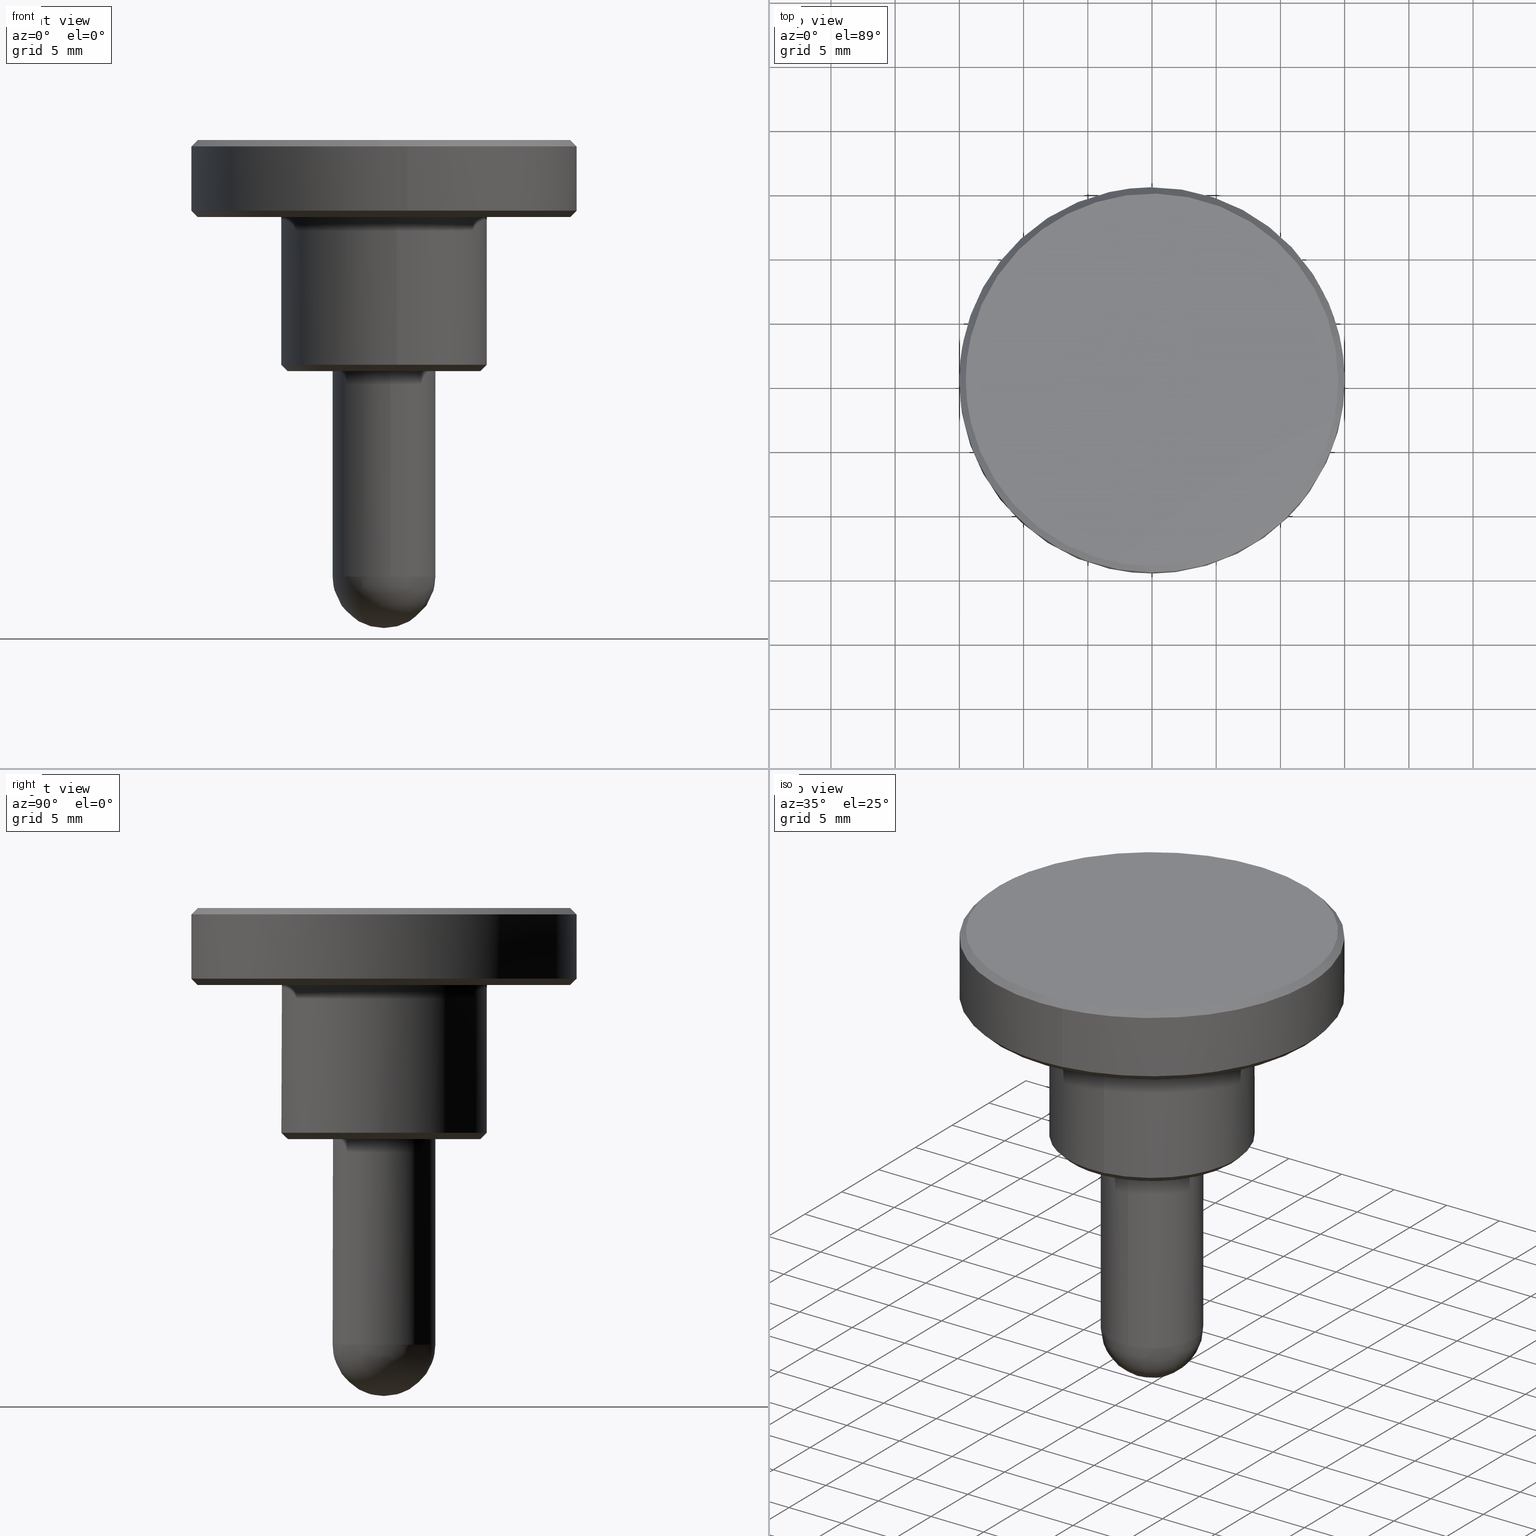
[diagram: canonical four-view strip — front | top / right | iso, engineering-drawing reading convention]
A machine part, canonical four-view strip (front | top / right | iso — engineering-drawing reading convention). The complete STEP part file that produces these views, byte-faithful:
ISO-10303-21;
HEADER;
/****************************************************************
 * Generated by software with PDE/Lib inside                    *
 * PDElib Version 4.4.1-0003, patched  Thursday August 19 11:58 *
 * International Technegroup Inc. (www.iti-oh.com)              *
 ****************************************************************/
FILE_DESCRIPTION((''),'2;1');
FILE_NAME('','2005-07-15T10:47:50',(''),(''),'','CADfix','');
FILE_SCHEMA(('AUTOMOTIVE_DESIGN'));
ENDSEC;
DATA;
#5=APPLICATION_CONTEXT('automotive design');
#6=APPLICATION_PROTOCOL_DEFINITION('Draft International Standard','automotive_design',1998,#5);
#7=PRODUCT_CONTEXT('None',#5,'mechanical');
#8=PRODUCT('knob','','None',(#7));
#9=PRODUCT_RELATED_PRODUCT_CATEGORY('part','description',(#8));
#10=PRODUCT_DEFINITION_FORMATION('None','None',#8);
#11=PRODUCT_DEFINITION_CONTEXT('part definition',#5,'design');
#12=PRODUCT_DEFINITION('None','None',#10,#11);
#18=(NAMED_UNIT(*)PLANE_ANGLE_UNIT()SI_UNIT($,.RADIAN.));
#19=DIMENSIONAL_EXPONENTS(0.0,0.0,0.0,0.0,0.0,0.0,0.0);
#20=PLANE_ANGLE_MEASURE_WITH_UNIT(PLANE_ANGLE_MEASURE(0.017453292500000),#18);
#24=(CONVERSION_BASED_UNIT('DEGREE',#20)NAMED_UNIT(#19)PLANE_ANGLE_UNIT());
#28=(NAMED_UNIT(*)SI_UNIT($,.STERADIAN.)SOLID_ANGLE_UNIT());
#32=(LENGTH_UNIT()NAMED_UNIT(*)SI_UNIT(.MILLI.,.METRE.));
#34=UNCERTAINTY_MEASURE_WITH_UNIT(LENGTH_MEASURE(0.001000000000000),#32,'DISTANCE_ACCURACY_VALUE','');
#36=(GEOMETRIC_REPRESENTATION_CONTEXT(3)GLOBAL_UNCERTAINTY_ASSIGNED_CONTEXT((#34))GLOBAL_UNIT_ASSIGNED_CONTEXT((#24,#28,#32))REPRESENTATION_CONTEXT('None','None'));
#37=AXIS2_PLACEMENT_3D('',#38,#39,#40);
#38=CARTESIAN_POINT('',(0.0,0.0,0.0));
#39=DIRECTION('',(0.0,0.0,1.0));
#40=DIRECTION('',(1.0,0.0,0.0));
#41=ADVANCED_BREP_SHAPE_REPRESENTATION('',(#37,#1164),#36);
#42=PRODUCT_DEFINITION_SHAPE('','',#12);
#43=SHAPE_DEFINITION_REPRESENTATION(#42,#41);
#44=CARTESIAN_POINT('',(-14.113985494174887,-3.268496553497049,18.012499999999999));
#45=CARTESIAN_POINT('',(-14.501955050900259,-1.593170725190882,18.012499999999999));
#46=CARTESIAN_POINT('',(-14.486948360392230,0.126425683032692,18.012499999999999));
#47=CARTESIAN_POINT('',(-14.360522677359546,14.613374043424921,18.012500000000003));
#48=CARTESIAN_POINT('',(0.126425683032692,14.486948360392230,18.012499999999999));
#49=CARTESIAN_POINT('',(14.613374043424921,14.360522677359546,18.012500000000003));
#50=CARTESIAN_POINT('',(14.486948360392230,-0.126425683032692,18.012499999999999));
#51=CARTESIAN_POINT('',(14.360522677359546,-14.613374043424921,18.012500000000003));
#52=CARTESIAN_POINT('',(-0.126425683032692,-14.486948360392230,18.012499999999999));
#53=CARTESIAN_POINT('',(-14.625754467766466,-3.387011279692647,17.487187499999997));
#54=CARTESIAN_POINT('',(-15.027791686805363,-1.650938628319562,17.487187500000001));
#55=CARTESIAN_POINT('',(-15.012240858101830,0.131009841211681,17.487187500000001));
#56=CARTESIAN_POINT('',(-14.881231016890139,15.143250699313507,17.487187500000001));
#57=CARTESIAN_POINT('',(0.131009841211681,15.012240858101830,17.487187500000001));
#58=CARTESIAN_POINT('',(15.143250699313507,14.881231016890139,17.487187500000001));
#59=CARTESIAN_POINT('',(15.012240858101830,-0.131009841211681,17.487187500000001));
#60=CARTESIAN_POINT('',(14.881231016890139,-15.143250699313507,17.487187500000001));
#61=CARTESIAN_POINT('',(-0.131009841211681,-15.012240858101830,17.487187500000001));
#69=(BOUNDED_SURFACE()B_SPLINE_SURFACE(2,1,((#44,#53),(#45,#54),(#46,#55),(#47,#56),(#48,#57),(#49,#58),(#50,#59),(#51,#60),(#52,#61)),.UNSPECIFIED.,.F.,.F.,.U.)B_SPLINE_SURFACE_WITH_KNOTS((3,2,2,2,3),(2,2),(0.0,3.979846749993173,28.853888937450488,53.727931124907812,78.601973312365132),(0.0,1.0),.UNSPECIFIED.)GEOMETRIC_REPRESENTATION_ITEM()RATIONAL_B_SPLINE_SURFACE(((0.921270302782944,0.921270302782944),(0.953137084989848,0.953137084989848),(1.0,1.0),(0.707106781186548,0.707106781186548),(1.0,1.0),(0.707106781186548,0.707106781186548),(1.0,1.0),(0.707106781186548,0.707106781186548),(1.0,1.0)))REPRESENTATION_ITEM('')SURFACE());
#70=CARTESIAN_POINT('',(-14.613272297676840,-3.384120676632547,17.499999999997950));
#71=VERTEX_POINT('',#70);
#72=CARTESIAN_POINT('',(-15.0,0.0,17.500000000000000));
#73=VERTEX_POINT('',#72);
#74=CARTESIAN_POINT('',(-14.613272297676838,-3.384120676632548,17.499999999997950));
#75=CARTESIAN_POINT('',(-14.999999999999996,-1.714157410214153,17.500000000000004));
#76=CARTESIAN_POINT('',(-15.0,0.0,17.500000000000000));
#84=(BOUNDED_CURVE()B_SPLINE_CURVE(2,(#74,#75,#76),.UNSPECIFIED.,.F.,.U.)B_SPLINE_CURVE_WITH_KNOTS((3,3),(0.961422971784221,1.0),.UNSPECIFIED.)CURVE()GEOMETRIC_REPRESENTATION_ITEM()RATIONAL_B_SPLINE_CURVE((0.923556557442156,0.954804200134492,1.0))REPRESENTATION_ITEM(''));
#85=EDGE_CURVE('',#71,#73,#84,.T.);
#86=ORIENTED_EDGE('',*,*,#85,.F.);
#87=CARTESIAN_POINT('',(-14.126163221086429,-3.271316654088644,17.999999999996831));
#88=VERTEX_POINT('',#87);
#89=CARTESIAN_POINT('',(-14.126163221086429,-3.271316654088644,17.999999999996831));
#90=CARTESIAN_POINT('',(-14.613272297676840,-3.384120676632547,17.499999999997950));
#91=QUASI_UNIFORM_CURVE('',1,(#89,#90),.UNSPECIFIED.,.F.,.U.);
#92=EDGE_CURVE('',#88,#71,#91,.T.);
#93=ORIENTED_EDGE('',*,*,#92,.F.);
#94=CARTESIAN_POINT('',(-14.500000000000000,0.0,18.0));
#95=VERTEX_POINT('',#94);
#96=CARTESIAN_POINT('',(-14.500000000000000,0.0,18.0));
#97=CARTESIAN_POINT('',(-14.500000000000004,-1.657018829884324,18.000000000000004));
#98=CARTESIAN_POINT('',(-14.126163221086427,-3.271316654088645,17.999999999996835));
#106=(BOUNDED_CURVE()B_SPLINE_CURVE(2,(#96,#97,#98),.UNSPECIFIED.,.F.,.U.)B_SPLINE_CURVE_WITH_KNOTS((3,3),(0.500000000000000,0.538577028216016),.UNSPECIFIED.)CURVE()GEOMETRIC_REPRESENTATION_ITEM()RATIONAL_B_SPLINE_CURVE((1.0,0.954804200134215,0.923556557441772))REPRESENTATION_ITEM(''));
#107=EDGE_CURVE('',#95,#88,#106,.T.);
#108=ORIENTED_EDGE('',*,*,#107,.F.);
#109=CARTESIAN_POINT('',(14.500000000000000,0.0,18.0));
#110=VERTEX_POINT('',#109);
#111=CARTESIAN_POINT('',(14.500000000000000,0.0,18.0));
#112=CARTESIAN_POINT('',(14.500000000000000,14.500000000000000,18.000000000000007));
#113=CARTESIAN_POINT('',(0.0,14.500000000000000,18.0));
#114=CARTESIAN_POINT('',(-14.500000000000000,14.500000000000000,18.000000000000007));
#115=CARTESIAN_POINT('',(-14.500000000000000,0.0,18.0));
#123=(BOUNDED_CURVE()B_SPLINE_CURVE(2,(#111,#112,#113,#114,#115),.UNSPECIFIED.,.F.,.U.)B_SPLINE_CURVE_WITH_KNOTS((3,2,3),(0.0,0.250000000000000,0.500000000000000),.UNSPECIFIED.)CURVE()GEOMETRIC_REPRESENTATION_ITEM()RATIONAL_B_SPLINE_CURVE((1.0,0.707106781186548,1.0,0.707106781186548,1.0))REPRESENTATION_ITEM(''));
#124=EDGE_CURVE('',#110,#95,#123,.T.);
#125=ORIENTED_EDGE('',*,*,#124,.F.);
#126=CARTESIAN_POINT('',(-0.126534764762240,-14.499447884435060,17.999999999995140));
#127=VERTEX_POINT('',#126);
#128=CARTESIAN_POINT('',(-0.126534764762240,-14.499447884435062,17.999999999995136));
#129=CARTESIAN_POINT('',(-0.063268586935950,-14.500000000000002,18.000000000000004));
#130=CARTESIAN_POINT('',(0.0,-14.500000000000000,18.0));
#131=CARTESIAN_POINT('',(14.500000000000000,-14.500000000000000,18.000000000000007));
#132=CARTESIAN_POINT('',(14.500000000000000,0.0,18.0));
#140=(BOUNDED_CURVE()B_SPLINE_CURVE(2,(#128,#129,#130,#131,#132),.UNSPECIFIED.,.F.,.U.)B_SPLINE_CURVE_WITH_KNOTS((3,2,3),(0.748460105664144,0.750000000000000,1.0),.UNSPECIFIED.)CURVE()GEOMETRIC_REPRESENTATION_ITEM()RATIONAL_B_SPLINE_CURVE((0.996414028098394,0.998195901565354,1.0,0.707106781186548,1.0))REPRESENTATION_ITEM(''));
#141=EDGE_CURVE('',#127,#110,#140,.T.);
#142=ORIENTED_EDGE('',*,*,#141,.F.);
#143=CARTESIAN_POINT('',(-0.130898032526533,-14.999428845969049,17.499999999993079));
#144=VERTEX_POINT('',#143);
#145=CARTESIAN_POINT('',(-0.126534764762240,-14.499447884435060,17.999999999995140));
#146=CARTESIAN_POINT('',(-0.130898032526533,-14.999428845969049,17.499999999993079));
#147=QUASI_UNIFORM_CURVE('',1,(#145,#146),.UNSPECIFIED.,.F.,.U.);
#148=EDGE_CURVE('',#127,#144,#147,.T.);
#149=ORIENTED_EDGE('',*,*,#148,.T.);
#150=CARTESIAN_POINT('',(1.861913014048360,-14.883994085193240,17.500000000000082));
#151=VERTEX_POINT('',#150);
#152=CARTESIAN_POINT('',(1.861913014048360,-14.883994085193237,17.500000000000075));
#153=CARTESIAN_POINT('',(0.934570363355979,-15.000000000000005,17.500000000000000));
#154=CARTESIAN_POINT('',(0.0,-15.0,17.500000000000000));
#155=CARTESIAN_POINT('',(-0.065450262361395,-15.000000000000005,17.500000000000004));
#156=CARTESIAN_POINT('',(-0.130898032526533,-14.999428845969051,17.499999999993079));
#164=(BOUNDED_CURVE()B_SPLINE_CURVE(2,(#152,#153,#154,#155,#156),.UNSPECIFIED.,.F.,.U.)B_SPLINE_CURVE_WITH_KNOTS((3,2,3),(0.728526150538448,0.750000000000000,0.751539894336182),.UNSPECIFIED.)CURVE()GEOMETRIC_REPRESENTATION_ITEM()RATIONAL_B_SPLINE_CURVE((0.954005584571298,0.974841820443562,1.0,0.998195901564972,0.996414028097641))REPRESENTATION_ITEM(''));
#165=EDGE_CURVE('',#151,#144,#164,.T.);
#166=ORIENTED_EDGE('',*,*,#165,.F.);
#167=CARTESIAN_POINT('',(15.0,0.0,17.500000000000000));
#168=VERTEX_POINT('',#167);
#169=CARTESIAN_POINT('',(15.0,0.0,17.500000000000000));
#170=CARTESIAN_POINT('',(15.000000000000004,-13.240485293211602,17.500000000000000));
#171=CARTESIAN_POINT('',(1.861913014048360,-14.883994085193237,17.500000000000075));
#179=(BOUNDED_CURVE()B_SPLINE_CURVE(2,(#169,#170,#171),.UNSPECIFIED.,.F.,.U.)B_SPLINE_CURVE_WITH_KNOTS((3,3),(0.500000000000000,0.728526150538448),.UNSPECIFIED.)CURVE()GEOMETRIC_REPRESENTATION_ITEM()RATIONAL_B_SPLINE_CURVE((1.0,0.732264960742985,0.954005584571298))REPRESENTATION_ITEM(''));
#180=EDGE_CURVE('',#168,#151,#179,.T.);
#181=ORIENTED_EDGE('',*,*,#180,.F.);
#182=CARTESIAN_POINT('',(-0.130886080069205,14.999428950260111,17.500000000000028));
#183=VERTEX_POINT('',#182);
#184=CARTESIAN_POINT('',(-0.130886080069205,14.999428950260111,17.500000000000025));
#185=CARTESIAN_POINT('',(-0.065444285766026,14.999999999999996,17.500000000000000));
#186=CARTESIAN_POINT('',(0.0,15.0,17.500000000000000));
#187=CARTESIAN_POINT('',(14.999999999999996,14.999999999999996,17.500000000000000));
#188=CARTESIAN_POINT('',(15.0,0.0,17.500000000000000));
#196=(BOUNDED_CURVE()B_SPLINE_CURVE(2,(#184,#185,#186,#187,#188),.UNSPECIFIED.,.F.,.U.)B_SPLINE_CURVE_WITH_KNOTS((3,2,3),(0.248460246025718,0.250000000000000,0.500000000000000),.UNSPECIFIED.)CURVE()GEOMETRIC_REPRESENTATION_ITEM()RATIONAL_B_SPLINE_CURVE((0.996414352934588,0.998196066009167,1.0,0.707106781186547,1.0))REPRESENTATION_ITEM(''));
#197=EDGE_CURVE('',#183,#168,#196,.T.);
#198=ORIENTED_EDGE('',*,*,#197,.F.);
#199=CARTESIAN_POINT('',(-15.0,0.0,17.500000000000000));
#200=CARTESIAN_POINT('',(-15.000000000000002,14.869680008386101,17.500000000000000));
#201=CARTESIAN_POINT('',(-0.130886080069205,14.999428950260111,17.500000000000025));
#209=(BOUNDED_CURVE()B_SPLINE_CURVE(2,(#199,#200,#201),.UNSPECIFIED.,.F.,.U.)B_SPLINE_CURVE_WITH_KNOTS((3,3),(0.0,0.248460246025718),.UNSPECIFIED.)CURVE()GEOMETRIC_REPRESENTATION_ITEM()RATIONAL_B_SPLINE_CURVE((1.0,0.708910715177381,0.996414352934588))REPRESENTATION_ITEM(''));
#210=EDGE_CURVE('',#73,#183,#209,.T.);
#211=ORIENTED_EDGE('',*,*,#210,.F.);
#212=EDGE_LOOP('',(#86,#93,#108,#125,#142,#149,#166,#181,#198,#211));
#213=FACE_OUTER_BOUND('',#212,.T.);
#214=ADVANCED_FACE('',(#213),#69,.T.);
#215=CARTESIAN_POINT('',(-0.126425683032692,-14.486948360392230,18.012499999999999));
#216=CARTESIAN_POINT('',(-11.539096987788398,-14.387351486776240,18.012500000000003));
#217=CARTESIAN_POINT('',(-14.113985494174887,-3.268496553497049,18.012499999999999));
#218=CARTESIAN_POINT('',(-0.131009841211681,-15.012240858101830,17.487187500000001));
#219=CARTESIAN_POINT('',(-11.957501259498279,-14.909032631065896,17.487187500000001));
#220=CARTESIAN_POINT('',(-14.625754467766466,-3.387011279692647,17.487187499999997));
#228=(BOUNDED_SURFACE()B_SPLINE_SURFACE(2,1,((#215,#218),(#216,#219),(#217,#220)),.UNSPECIFIED.,.F.,.F.,.U.)B_SPLINE_SURFACE_WITH_KNOTS((3,3),(2,2),(0.0,20.802823909488470),(0.0,1.0),.UNSPECIFIED.)GEOMETRIC_REPRESENTATION_ITEM()RATIONAL_B_SPLINE_SURFACE(((1.0,1.0),(0.753969696196700,0.753969696196700),(0.921270302782944,0.921270302782944)))REPRESENTATION_ITEM('')SURFACE());
#229=CARTESIAN_POINT('',(-0.130898032526533,-14.999428845969048,17.499999999993076));
#230=CARTESIAN_POINT('',(-11.947296277251121,-14.896308700637311,17.499999999999996));
#231=CARTESIAN_POINT('',(-14.613272297676838,-3.384120676632547,17.499999999997954));
#239=(BOUNDED_CURVE()B_SPLINE_CURVE(2,(#229,#230,#231),.UNSPECIFIED.,.F.,.U.)B_SPLINE_CURVE_WITH_KNOTS((3,3),(0.751539894336182,0.961422971784220),.UNSPECIFIED.)CURVE()GEOMETRIC_REPRESENTATION_ITEM()RATIONAL_B_SPLINE_CURVE((0.996414028097641,0.753549905437226,0.923556557442155))REPRESENTATION_ITEM(''));
#240=EDGE_CURVE('',#144,#71,#239,.T.);
#241=ORIENTED_EDGE('',*,*,#240,.F.);
#242=ORIENTED_EDGE('',*,*,#148,.F.);
#243=CARTESIAN_POINT('',(-14.126163221086433,-3.271316654088644,17.999999999996835));
#244=CARTESIAN_POINT('',(-11.549053067987515,-14.399765077304012,18.000000000000004));
#245=CARTESIAN_POINT('',(-0.126534764762240,-14.499447884435058,17.999999999995143));
#253=(BOUNDED_CURVE()B_SPLINE_CURVE(2,(#243,#244,#245),.UNSPECIFIED.,.F.,.U.)B_SPLINE_CURVE_WITH_KNOTS((3,3),(0.538577028216016,0.748460105664143),.UNSPECIFIED.)CURVE()GEOMETRIC_REPRESENTATION_ITEM()RATIONAL_B_SPLINE_CURVE((0.923556557441772,0.753549905437237,0.996414028098394))REPRESENTATION_ITEM(''));
#254=EDGE_CURVE('',#88,#127,#253,.T.);
#255=ORIENTED_EDGE('',*,*,#254,.F.);
#256=ORIENTED_EDGE('',*,*,#92,.T.);
#257=EDGE_LOOP('',(#241,#242,#255,#256));
#258=FACE_OUTER_BOUND('',#257,.T.);
#259=ADVANCED_FACE('',(#258),#228,.T.);
#260=CARTESIAN_POINT('',(11.863322807898196,-8.315601493915052,11.987500000000006));
#261=CARTESIAN_POINT('',(14.527452271915889,-4.514862863426098,11.987500000000006));
#262=CARTESIAN_POINT('',(14.486948360392180,0.126425683032692,11.987500000000001));
#263=CARTESIAN_POINT('',(14.360522677359487,14.613374043424866,11.987500000000001));
#264=CARTESIAN_POINT('',(-0.126425683032692,14.486948360392180,11.987500000000001));
#265=CARTESIAN_POINT('',(-14.613374043424866,14.360522677359487,11.987500000000001));
#266=CARTESIAN_POINT('',(-14.486948360392180,-0.126425683032692,11.987500000000001));
#267=CARTESIAN_POINT('',(-14.360522677359487,-14.613374043424866,11.987500000000001));
#268=CARTESIAN_POINT('',(0.126425683032692,-14.486948360392180,11.987500000000001));
#269=CARTESIAN_POINT('',(12.293483412731655,-8.617122764650015,12.512812500000011));
#270=CARTESIAN_POINT('',(15.054213429575364,-4.678570466390292,12.512812500000003));
#271=CARTESIAN_POINT('',(15.012240858101890,0.131009841211682,12.512812500000001));
#272=CARTESIAN_POINT('',(14.881231016890208,15.143250699313565,12.512812500000003));
#273=CARTESIAN_POINT('',(-0.131009841211682,15.012240858101890,12.512812500000001));
#274=CARTESIAN_POINT('',(-15.143250699313565,14.881231016890208,12.512812500000003));
#275=CARTESIAN_POINT('',(-15.012240858101890,-0.131009841211682,12.512812500000001));
#276=CARTESIAN_POINT('',(-14.881231016890208,-15.143250699313565,12.512812500000003));
#277=CARTESIAN_POINT('',(0.131009841211682,-15.012240858101890,12.512812500000001));
#285=(BOUNDED_SURFACE()B_SPLINE_SURFACE(2,1,((#260,#269),(#261,#270),(#262,#271),(#263,#272),(#264,#273),(#265,#274),(#266,#275),(#267,#276),(#268,#277)),.UNSPECIFIED.,.F.,.F.,.U.)B_SPLINE_SURFACE_WITH_KNOTS((3,2,2,2,3),(2,2),(0.0,9.949616874982967,34.823659062440392,59.697701249897797,84.571743437355209),(0.0,1.0),.UNSPECIFIED.)GEOMETRIC_REPRESENTATION_ITEM()RATIONAL_B_SPLINE_SURFACE(((0.859411254969543,0.859411254969543),(0.882842712474619,0.882842712474619),(1.0,1.0),(0.707106781186548,0.707106781186548),(1.0,1.0),(0.707106781186548,0.707106781186548),(1.0,1.0),(0.707106781186548,0.707106781186548),(1.0,1.0)))REPRESENTATION_ITEM('')SURFACE());
#286=CARTESIAN_POINT('',(14.500000000000000,0.0,12.0));
#287=VERTEX_POINT('',#286);
#288=CARTESIAN_POINT('',(11.873558634304199,-8.322776301075679,12.000000000000229));
#289=VERTEX_POINT('',#288);
#290=CARTESIAN_POINT('',(14.500000000000000,0.0,12.0));
#291=CARTESIAN_POINT('',(14.500000000000004,-4.575804806587793,11.999999999999998));
#292=CARTESIAN_POINT('',(11.873558634304203,-8.322776301075679,12.000000000000236));
#300=(BOUNDED_CURVE()B_SPLINE_CURVE(2,(#290,#291,#292),.UNSPECIFIED.,.F.,.U.)B_SPLINE_CURVE_WITH_KNOTS((3,3),(0.0,0.098673726202985),.UNSPECIFIED.)CURVE()GEOMETRIC_REPRESENTATION_ITEM()RATIONAL_B_SPLINE_CURVE((1.0,0.884396538880362,0.860049271925816))REPRESENTATION_ITEM(''));
#301=EDGE_CURVE('',#287,#289,#300,.T.);
#302=ORIENTED_EDGE('',*,*,#301,.F.);
#303=CARTESIAN_POINT('',(-14.500000000000000,0.0,12.0));
#304=VERTEX_POINT('',#303);
#305=CARTESIAN_POINT('',(-14.500000000000000,0.0,12.0));
#306=CARTESIAN_POINT('',(-14.500000000000000,14.500000000000000,12.0));
#307=CARTESIAN_POINT('',(0.0,14.500000000000000,12.0));
#308=CARTESIAN_POINT('',(14.500000000000000,14.500000000000000,12.0));
#309=CARTESIAN_POINT('',(14.500000000000000,0.0,12.0));
#317=(BOUNDED_CURVE()B_SPLINE_CURVE(2,(#305,#306,#307,#308,#309),.UNSPECIFIED.,.F.,.U.)B_SPLINE_CURVE_WITH_KNOTS((3,2,3),(0.500000000000000,0.750000000000000,1.0),.UNSPECIFIED.)CURVE()GEOMETRIC_REPRESENTATION_ITEM()RATIONAL_B_SPLINE_CURVE((1.0,0.707106781186548,1.0,0.707106781186548,1.0))REPRESENTATION_ITEM(''));
#318=EDGE_CURVE('',#304,#287,#317,.T.);
#319=ORIENTED_EDGE('',*,*,#318,.F.);
#320=CARTESIAN_POINT('',(0.126534764762243,-14.499447884435050,12.000000000004880));
#321=VERTEX_POINT('',#320);
#322=CARTESIAN_POINT('',(0.126534764762243,-14.499447884435046,12.000000000004880));
#323=CARTESIAN_POINT('',(0.063268586935953,-14.500000000000004,12.000000000000007));
#324=CARTESIAN_POINT('',(0.0,-14.500000000000000,12.0));
#325=CARTESIAN_POINT('',(-14.500000000000000,-14.500000000000000,12.0));
#326=CARTESIAN_POINT('',(-14.500000000000000,0.0,12.0));
#334=(BOUNDED_CURVE()B_SPLINE_CURVE(2,(#322,#323,#324,#325,#326),.UNSPECIFIED.,.F.,.U.)B_SPLINE_CURVE_WITH_KNOTS((3,2,3),(0.248460105664144,0.250000000000000,0.500000000000000),.UNSPECIFIED.)CURVE()GEOMETRIC_REPRESENTATION_ITEM()RATIONAL_B_SPLINE_CURVE((0.996414028098394,0.998195901565354,1.0,0.707106781186548,1.0))REPRESENTATION_ITEM(''));
#335=EDGE_CURVE('',#321,#304,#334,.T.);
#336=ORIENTED_EDGE('',*,*,#335,.F.);
#337=CARTESIAN_POINT('',(0.130898032476117,-14.999428845962649,12.500000000000060));
#338=VERTEX_POINT('',#337);
#339=CARTESIAN_POINT('',(0.126534764762243,-14.499447884435050,12.000000000004880));
#340=CARTESIAN_POINT('',(0.130898032476117,-14.999428845962649,12.500000000000060));
#341=QUASI_UNIFORM_CURVE('',1,(#339,#340),.UNSPECIFIED.,.F.,.U.);
#342=EDGE_CURVE('',#321,#338,#341,.T.);
#343=ORIENTED_EDGE('',*,*,#342,.T.);
#344=CARTESIAN_POINT('',(-15.0,0.0,12.500000000000000));
#345=VERTEX_POINT('',#344);
#346=CARTESIAN_POINT('',(-15.0,0.0,12.500000000000000));
#347=CARTESIAN_POINT('',(-14.999999999999996,-14.999999999999996,12.499999999999998));
#348=CARTESIAN_POINT('',(0.0,-15.0,12.500000000000000));
#349=CARTESIAN_POINT('',(0.065450262311028,-14.999999999999998,12.500000000000004));
#350=CARTESIAN_POINT('',(0.130898032476117,-14.999428845962647,12.500000000000060));
#358=(BOUNDED_CURVE()B_SPLINE_CURVE(2,(#346,#347,#348,#349,#350),.UNSPECIFIED.,.F.,.U.)B_SPLINE_CURVE_WITH_KNOTS((3,2,3),(0.0,0.250000000000000,0.251539894334999),.UNSPECIFIED.)CURVE()GEOMETRIC_REPRESENTATION_ITEM()RATIONAL_B_SPLINE_CURVE((1.0,0.707106781186547,1.0,0.998195901566358,0.996414028100378))REPRESENTATION_ITEM(''));
#359=EDGE_CURVE('',#345,#338,#358,.T.);
#360=ORIENTED_EDGE('',*,*,#359,.F.);
#361=CARTESIAN_POINT('',(-0.130885628363119,14.999428954201360,12.500000000000000));
#362=VERTEX_POINT('',#361);
#363=CARTESIAN_POINT('',(-0.130885628363119,14.999428954201353,12.499999999999998));
#364=CARTESIAN_POINT('',(-15.000000000000002,14.869680456201866,12.500000000000000));
#365=CARTESIAN_POINT('',(-15.0,0.0,12.500000000000000));
#373=(BOUNDED_CURVE()B_SPLINE_CURVE(2,(#363,#364,#365),.UNSPECIFIED.,.F.,.U.)B_SPLINE_CURVE_WITH_KNOTS((3,3),(0.751539748669761,1.0),.UNSPECIFIED.)CURVE()GEOMETRIC_REPRESENTATION_ITEM()RATIONAL_B_SPLINE_CURVE((0.996414365210750,0.708910708962747,1.0))REPRESENTATION_ITEM(''));
#374=EDGE_CURVE('',#362,#345,#373,.T.);
#375=ORIENTED_EDGE('',*,*,#374,.F.);
#376=CARTESIAN_POINT('',(15.0,0.0,12.500000000000000));
#377=VERTEX_POINT('',#376);
#378=CARTESIAN_POINT('',(15.0,0.0,12.500000000000000));
#379=CARTESIAN_POINT('',(14.999999999999996,14.999999999999996,12.499999999999998));
#380=CARTESIAN_POINT('',(0.0,15.0,12.500000000000000));
#381=CARTESIAN_POINT('',(-0.065444059900086,14.999999999999996,12.499999999999996));
#382=CARTESIAN_POINT('',(-0.130885628363119,14.999428954201353,12.499999999999998));
#390=(BOUNDED_CURVE()B_SPLINE_CURVE(2,(#378,#379,#380,#381,#382),.UNSPECIFIED.,.F.,.U.)B_SPLINE_CURVE_WITH_KNOTS((3,2,3),(0.500000000000000,0.750000000000000,0.751539748669761),.UNSPECIFIED.)CURVE()GEOMETRIC_REPRESENTATION_ITEM()RATIONAL_B_SPLINE_CURVE((1.0,0.707106781186547,1.0,0.998196072223800,0.996414365210750))REPRESENTATION_ITEM(''));
#391=EDGE_CURVE('',#377,#362,#390,.T.);
#392=ORIENTED_EDGE('',*,*,#391,.F.);
#393=CARTESIAN_POINT('',(12.282991690659861,-8.609768587319159,12.500000000000201));
#394=VERTEX_POINT('',#393);
#395=CARTESIAN_POINT('',(12.282991690659863,-8.609768587319159,12.500000000000197));
#396=CARTESIAN_POINT('',(14.999999999999995,-4.733591179228077,12.500000000000007));
#397=CARTESIAN_POINT('',(15.0,0.0,12.500000000000000));
#405=(BOUNDED_CURVE()B_SPLINE_CURVE(2,(#395,#396,#397),.UNSPECIFIED.,.F.,.U.)B_SPLINE_CURVE_WITH_KNOTS((3,3),(0.401326273797028,0.500000000000000),.UNSPECIFIED.)CURVE()GEOMETRIC_REPRESENTATION_ITEM()RATIONAL_B_SPLINE_CURVE((0.860049271925822,0.884396538880376,1.0))REPRESENTATION_ITEM(''));
#406=EDGE_CURVE('',#394,#377,#405,.T.);
#407=ORIENTED_EDGE('',*,*,#406,.F.);
#408=CARTESIAN_POINT('',(11.873558634304199,-8.322776301075679,12.000000000000229));
#409=CARTESIAN_POINT('',(12.282991690659861,-8.609768587319159,12.500000000000201));
#410=QUASI_UNIFORM_CURVE('',1,(#408,#409),.UNSPECIFIED.,.F.,.U.);
#411=EDGE_CURVE('',#289,#394,#410,.T.);
#412=ORIENTED_EDGE('',*,*,#411,.F.);
#413=EDGE_LOOP('',(#302,#319,#336,#343,#360,#375,#392,#407,#412));
#414=FACE_OUTER_BOUND('',#413,.T.);
#415=ADVANCED_FACE('',(#414),#285,.T.);
#416=CARTESIAN_POINT('',(0.126425683032692,-14.486948360392180,11.987500000000001));
#417=CARTESIAN_POINT('',(7.583127834570551,-14.421874706560637,11.987500000000001));
#418=CARTESIAN_POINT('',(11.863322807898196,-8.315601493915052,11.987500000000006));
#419=CARTESIAN_POINT('',(0.131009841211682,-15.012240858101890,12.512812500000001));
#420=CARTESIAN_POINT('',(7.858089825293472,-14.944807652672184,12.512812500000003));
#421=CARTESIAN_POINT('',(12.293483412731655,-8.617122764650015,12.512812500000011));
#429=(BOUNDED_SURFACE()B_SPLINE_SURFACE(2,1,((#416,#419),(#417,#420),(#418,#421)),.UNSPECIFIED.,.F.,.F.,.U.)B_SPLINE_SURFACE_WITH_KNOTS((3,3),(2,2),(0.0,14.822698393180930),(0.0,1.0),.UNSPECIFIED.)GEOMETRIC_REPRESENTATION_ITEM()RATIONAL_B_SPLINE_SURFACE(((1.0,1.0),(0.824264068711928,0.824264068711928),(0.859411254969543,0.859411254969543)))REPRESENTATION_ITEM('')SURFACE());
#430=CARTESIAN_POINT('',(11.873558634304203,-8.322776301075679,12.000000000000236));
#431=CARTESIAN_POINT('',(7.589670654119141,-14.434318084182454,12.0));
#432=CARTESIAN_POINT('',(0.126534764762243,-14.499447884435048,12.000000000004873));
#440=(BOUNDED_CURVE()B_SPLINE_CURVE(2,(#430,#431,#432),.UNSPECIFIED.,.F.,.U.)B_SPLINE_CURVE_WITH_KNOTS((3,3),(0.098673726202985,0.248460105664144),.UNSPECIFIED.)CURVE()GEOMETRIC_REPRESENTATION_ITEM()RATIONAL_B_SPLINE_CURVE((0.860049271925816,0.823090203820964,0.996414028098394))REPRESENTATION_ITEM(''));
#441=EDGE_CURVE('',#289,#321,#440,.T.);
#442=ORIENTED_EDGE('',*,*,#441,.F.);
#443=ORIENTED_EDGE('',*,*,#411,.T.);
#444=CARTESIAN_POINT('',(1.861909287597829,-14.883994551350780,12.500000000000000));
#445=VERTEX_POINT('',#444);
#446=CARTESIAN_POINT('',(1.861909287597830,-14.883994551350776,12.500000000000000));
#447=CARTESIAN_POINT('',(8.463973537194306,-14.058111103115637,12.500000000000004));
#448=CARTESIAN_POINT('',(12.282991690659852,-8.609768587319159,12.500000000000201));
#456=(BOUNDED_CURVE()B_SPLINE_CURVE(2,(#446,#447,#448),.UNSPECIFIED.,.F.,.U.)B_SPLINE_CURVE_WITH_KNOTS((3,3),(0.271473807238290,0.401326273797027),.UNSPECIFIED.)CURVE()GEOMETRIC_REPRESENTATION_ITEM()RATIONAL_B_SPLINE_CURVE((0.954005666510404,0.828008800873685,0.860049271925822))REPRESENTATION_ITEM(''));
#457=EDGE_CURVE('',#445,#394,#456,.T.);
#458=ORIENTED_EDGE('',*,*,#457,.F.);
#459=CARTESIAN_POINT('',(0.130898032476117,-14.999428845962647,12.500000000000060));
#460=CARTESIAN_POINT('',(0.999746952747555,-14.991846516305150,12.500000000000002));
#461=CARTESIAN_POINT('',(1.861909287597830,-14.883994551350778,12.500000000000002));
#469=(BOUNDED_CURVE()B_SPLINE_CURVE(2,(#459,#460,#461),.UNSPECIFIED.,.F.,.U.)B_SPLINE_CURVE_WITH_KNOTS((3,3),(0.251539894334999,0.271473807238290),.UNSPECIFIED.)CURVE()GEOMETRIC_REPRESENTATION_ITEM()RATIONAL_B_SPLINE_CURVE((0.996414028100378,0.973347698373572,0.954005666510404))REPRESENTATION_ITEM(''));
#470=EDGE_CURVE('',#338,#445,#469,.T.);
#471=ORIENTED_EDGE('',*,*,#470,.F.);
#472=ORIENTED_EDGE('',*,*,#342,.F.);
#473=EDGE_LOOP('',(#442,#443,#458,#471,#472));
#474=FACE_OUTER_BOUND('',#473,.T.);
#475=ADVANCED_FACE('',(#474),#429,.T.);
#476=CARTESIAN_POINT('',(-3.026563047009208,-6.848545274178912,-0.012499999999999));
#477=CARTESIAN_POINT('',(-1.549484936269222,-7.501307262095797,-0.012499999999999));
#478=CARTESIAN_POINT('',(0.065339934544075,-7.487214898942980,-0.012499999999999));
#479=CARTESIAN_POINT('',(7.552554833487054,-7.421874964398905,-0.012499999999999));
#480=CARTESIAN_POINT('',(7.487214898942980,0.065339934544075,-0.012499999999999));
#481=CARTESIAN_POINT('',(7.421874964398905,7.552554833487054,-0.012499999999999));
#482=CARTESIAN_POINT('',(-0.065339934544075,7.487214898942980,-0.012499999999999));
#483=CARTESIAN_POINT('',(-3.238902466125340,-7.329029606645305,0.512812499999944));
#484=CARTESIAN_POINT('',(-1.658194626497459,-8.027588460242001,0.512812499999944));
#485=CARTESIAN_POINT('',(0.069924092723064,-8.012507396652628,0.512812499999944));
#486=CARTESIAN_POINT('',(8.082431489375692,-7.942583303929566,0.512812499999944));
#487=CARTESIAN_POINT('',(8.012507396652628,0.069924092723064,0.512812499999944));
#488=CARTESIAN_POINT('',(7.942583303929566,8.082431489375692,0.512812499999944));
#489=CARTESIAN_POINT('',(-0.069924092723064,8.012507396652628,0.512812499999944));
#497=(BOUNDED_SURFACE()B_SPLINE_SURFACE(2,1,((#476,#483),(#477,#484),(#478,#485),(#479,#486),(#480,#487),(#481,#488),(#482,#489)),.UNSPECIFIED.,.F.,.F.,.U.)B_SPLINE_SURFACE_WITH_KNOTS((3,2,2,3),(2,2),(0.0,3.717297483482986,16.993359924493650,30.269422365504312),(0.0,1.0),.UNSPECIFIED.)GEOMETRIC_REPRESENTATION_ITEM()RATIONAL_B_SPLINE_SURFACE(((0.881905454174416,0.881905454174416),(0.917989898732233,0.917989898732233),(1.0,1.0),(0.707106781186548,0.707106781186548),(1.0,1.0),(0.707106781186548,0.707106781186548),(1.0,1.0)))REPRESENTATION_ITEM('')SURFACE());
#498=CARTESIAN_POINT('',(-3.233723455905102,-7.317310476584426,0.500000000000135));
#499=VERTEX_POINT('',#498);
#500=CARTESIAN_POINT('',(0.993013492135482,-7.938131027157739,0.499999999999937));
#501=VERTEX_POINT('',#500);
#502=CARTESIAN_POINT('',(-3.233723455905101,-7.317310476584426,0.500000000000135));
#503=CARTESIAN_POINT('',(-1.688924938017376,-8.0,0.499999999999945));
#504=CARTESIAN_POINT('',(0.0,-8.0,0.499999999999945));
#505=CARTESIAN_POINT('',(0.498434096416388,-8.0,0.499999999999945));
#506=CARTESIAN_POINT('',(0.993013492135482,-7.938131027157739,0.499999999999937));
#514=(BOUNDED_CURVE()B_SPLINE_CURVE(2,(#502,#503,#504,#505,#506),.UNSPECIFIED.,.F.,.U.)B_SPLINE_CURVE_WITH_KNOTS((3,2,3),(0.181361578459847,0.250000000000000,0.271473705377139),.UNSPECIFIED.)CURVE()GEOMETRIC_REPRESENTATION_ITEM()RATIONAL_B_SPLINE_CURVE((0.883326595751794,0.919585087123320,1.0,0.974841989248952,0.954005864183848))REPRESENTATION_ITEM(''));
#515=EDGE_CURVE('',#499,#501,#514,.T.);
#516=ORIENTED_EDGE('',*,*,#515,.F.);
#517=CARTESIAN_POINT('',(-3.031615739938810,-6.859978571788314,2.640659E-012));
#518=VERTEX_POINT('',#517);
#519=CARTESIAN_POINT('',(-3.031615739938810,-6.859978571788314,2.640659E-012));
#520=CARTESIAN_POINT('',(-3.233723455905102,-7.317310476584426,0.500000000000135));
#521=QUASI_UNIFORM_CURVE('',1,(#519,#520),.UNSPECIFIED.,.F.,.U.);
#522=EDGE_CURVE('',#518,#499,#521,.T.);
#523=ORIENTED_EDGE('',*,*,#522,.F.);
#524=CARTESIAN_POINT('',(7.500000000000000,0.0,0.0));
#525=VERTEX_POINT('',#524);
#526=CARTESIAN_POINT('',(7.500000000000000,0.0,0.0));
#527=CARTESIAN_POINT('',(7.500000000000000,-7.500000000000000,0.0));
#528=CARTESIAN_POINT('',(0.0,-7.500000000000000,0.0));
#529=CARTESIAN_POINT('',(-1.583367129421890,-7.499999999999999,0.0));
#530=CARTESIAN_POINT('',(-3.031615739938811,-6.859978571788314,2.640659E-012));
#538=(BOUNDED_CURVE()B_SPLINE_CURVE(2,(#526,#527,#528,#529,#530),.UNSPECIFIED.,.F.,.U.)B_SPLINE_CURVE_WITH_KNOTS((3,2,3),(0.500000000000000,0.750000000000000,0.818638421541373),.UNSPECIFIED.)CURVE()GEOMETRIC_REPRESENTATION_ITEM()RATIONAL_B_SPLINE_CURVE((1.0,0.707106781186547,1.0,0.919585087121891,0.883326595750505))REPRESENTATION_ITEM(''));
#539=EDGE_CURVE('',#525,#518,#538,.T.);
#540=ORIENTED_EDGE('',*,*,#539,.F.);
#541=CARTESIAN_POINT('',(-0.065449016247622,7.499714422982530,1.331431E-012));
#542=VERTEX_POINT('',#541);
#543=CARTESIAN_POINT('',(-0.065449016247622,7.499714422982530,1.331431E-012));
#544=CARTESIAN_POINT('',(-0.032725131165069,7.500000000000000,0.0));
#545=CARTESIAN_POINT('',(0.0,7.500000000000000,0.0));
#546=CARTESIAN_POINT('',(7.500000000000000,7.500000000000000,0.0));
#547=CARTESIAN_POINT('',(7.500000000000000,0.0,0.0));
#555=(BOUNDED_CURVE()B_SPLINE_CURVE(2,(#543,#544,#545,#546,#547),.UNSPECIFIED.,.F.,.U.)B_SPLINE_CURVE_WITH_KNOTS((3,2,3),(0.248460105664552,0.250000000000000,0.500000000000000),.UNSPECIFIED.)CURVE()GEOMETRIC_REPRESENTATION_ITEM()RATIONAL_B_SPLINE_CURVE((0.996414028099340,0.998195901565832,1.0,0.707106781186547,1.0))REPRESENTATION_ITEM(''));
#556=EDGE_CURVE('',#542,#525,#555,.T.);
#557=ORIENTED_EDGE('',*,*,#556,.F.);
#558=CARTESIAN_POINT('',(-0.069809601396773,7.999695407921285,0.499999999999060));
#559=VERTEX_POINT('',#558);
#560=CARTESIAN_POINT('',(-0.065449016247622,7.499714422982530,1.331431E-012));
#561=CARTESIAN_POINT('',(-0.069809601396773,7.999695407921285,0.499999999999060));
#562=QUASI_UNIFORM_CURVE('',1,(#560,#561),.UNSPECIFIED.,.F.,.U.);
#563=EDGE_CURVE('',#542,#559,#562,.T.);
#564=ORIENTED_EDGE('',*,*,#563,.T.);
#565=CARTESIAN_POINT('',(8.0,0.0,0.499999999999945));
#566=VERTEX_POINT('',#565);
#567=CARTESIAN_POINT('',(8.0,0.0,0.499999999999945));
#568=CARTESIAN_POINT('',(8.0,8.0,0.499999999999945));
#569=CARTESIAN_POINT('',(0.0,8.0,0.499999999999945));
#570=CARTESIAN_POINT('',(-0.034905465193904,8.0,0.499999999999945));
#571=CARTESIAN_POINT('',(-0.069809601396773,7.999695407921285,0.499999999999060));
#579=(BOUNDED_CURVE()B_SPLINE_CURVE(2,(#567,#568,#569,#570,#571),.UNSPECIFIED.,.F.,.U.)B_SPLINE_CURVE_WITH_KNOTS((3,2,3),(0.500000000000000,0.750000000000000,0.751539835267872),.UNSPECIFIED.)CURVE()GEOMETRIC_REPRESENTATION_ITEM()RATIONAL_B_SPLINE_CURVE((1.0,0.707106781186548,1.0,0.998195970767801,0.996414164798291))REPRESENTATION_ITEM(''));
#580=EDGE_CURVE('',#566,#559,#579,.T.);
#581=ORIENTED_EDGE('',*,*,#580,.F.);
#582=CARTESIAN_POINT('',(0.993013492135482,-7.938131027157739,0.499999999999937));
#583=CARTESIAN_POINT('',(8.0,-7.061598236547475,0.499999999999945));
#584=CARTESIAN_POINT('',(8.0,0.0,0.499999999999945));
#592=(BOUNDED_CURVE()B_SPLINE_CURVE(2,(#582,#583,#584),.UNSPECIFIED.,.F.,.U.)B_SPLINE_CURVE_WITH_KNOTS((3,3),(0.271473705377139,0.500000000000000),.UNSPECIFIED.)CURVE()GEOMETRIC_REPRESENTATION_ITEM()RATIONAL_B_SPLINE_CURVE((0.954005864183848,0.732264791937595,1.0))REPRESENTATION_ITEM(''));
#593=EDGE_CURVE('',#501,#566,#592,.T.);
#594=ORIENTED_EDGE('',*,*,#593,.F.);
#595=EDGE_LOOP('',(#516,#523,#540,#557,#564,#581,#594));
#596=FACE_OUTER_BOUND('',#595,.T.);
#597=ADVANCED_FACE('',(#596),#497,.T.);
#598=CARTESIAN_POINT('',(-0.065339934544075,7.487214898942980,-0.012499999999999));
#599=CARTESIAN_POINT('',(-7.552554833487054,7.421874964398905,-0.012499999999999));
#600=CARTESIAN_POINT('',(-7.487214898942980,-0.065339934544075,-0.012499999999999));
#601=CARTESIAN_POINT('',(-7.445059339336418,-4.895888605305823,-0.012499999999999));
#602=CARTESIAN_POINT('',(-3.026563047009208,-6.848545274178912,-0.012499999999999));
#603=CARTESIAN_POINT('',(-0.069924092723064,8.012507396652628,0.512812499999944));
#604=CARTESIAN_POINT('',(-8.082431489375692,7.942583303929566,0.512812499999944));
#605=CARTESIAN_POINT('',(-8.012507396652628,-0.069924092723064,0.512812499999944));
#606=CARTESIAN_POINT('',(-7.967394262100380,-5.239377284167221,0.512812499999944));
#607=CARTESIAN_POINT('',(-3.238902466125340,-7.329029606645305,0.512812499999944));
#615=(BOUNDED_SURFACE()B_SPLINE_SURFACE(2,1,((#598,#603),(#599,#604),(#600,#605),(#601,#606),(#602,#607)),.UNSPECIFIED.,.F.,.F.,.U.)B_SPLINE_SURFACE_WITH_KNOTS((3,2,3),(2,2),(0.0,13.276062441010660,22.834827398538330),(0.0,1.0),.UNSPECIFIED.)GEOMETRIC_REPRESENTATION_ITEM()RATIONAL_B_SPLINE_SURFACE(((1.0,1.0),(0.707106781186548,0.707106781186548),(1.0,1.0),(0.789116882454314,0.789116882454314),(0.881905454174416,0.881905454174416)))REPRESENTATION_ITEM('')SURFACE());
#616=CARTESIAN_POINT('',(-8.0,0.0,0.499999999999945));
#617=VERTEX_POINT('',#616);
#618=CARTESIAN_POINT('',(-8.0,0.0,0.499999999999945));
#619=CARTESIAN_POINT('',(-8.0,-5.210960020729852,0.499999999999945));
#620=CARTESIAN_POINT('',(-3.233723455905101,-7.317310476584426,0.500000000000135));
#628=(BOUNDED_CURVE()B_SPLINE_CURVE(2,(#618,#619,#620),.UNSPECIFIED.,.F.,.U.)B_SPLINE_CURVE_WITH_KNOTS((3,3),(0.0,0.181361578459847),.UNSPECIFIED.)CURVE()GEOMETRIC_REPRESENTATION_ITEM()RATIONAL_B_SPLINE_CURVE((1.0,0.787521694063228,0.883326595751794))REPRESENTATION_ITEM(''));
#629=EDGE_CURVE('',#617,#499,#628,.T.);
#630=ORIENTED_EDGE('',*,*,#629,.F.);
#631=CARTESIAN_POINT('',(-0.069809601396773,7.999695407921285,0.499999999999060));
#632=CARTESIAN_POINT('',(-8.0,7.930492344244528,0.499999999999945));
#633=CARTESIAN_POINT('',(-8.0,0.0,0.499999999999945));
#641=(BOUNDED_CURVE()B_SPLINE_CURVE(2,(#631,#632,#633),.UNSPECIFIED.,.F.,.U.)B_SPLINE_CURVE_WITH_KNOTS((3,3),(0.751539835267872,1.0),.UNSPECIFIED.)CURVE()GEOMETRIC_REPRESENTATION_ITEM()RATIONAL_B_SPLINE_CURVE((0.996414164798291,0.708910810418746,1.0))REPRESENTATION_ITEM(''));
#642=EDGE_CURVE('',#559,#617,#641,.T.);
#643=ORIENTED_EDGE('',*,*,#642,.F.);
#644=ORIENTED_EDGE('',*,*,#563,.F.);
#645=CARTESIAN_POINT('',(-7.500000000000000,0.0,0.0));
#646=VERTEX_POINT('',#645);
#647=CARTESIAN_POINT('',(-7.500000000000000,0.0,0.0));
#648=CARTESIAN_POINT('',(-7.500000000000000,7.434834079442895,0.0));
#649=CARTESIAN_POINT('',(-0.065449016247622,7.499714422982531,1.331431E-012));
#657=(BOUNDED_CURVE()B_SPLINE_CURVE(2,(#647,#648,#649),.UNSPECIFIED.,.F.,.U.)B_SPLINE_CURVE_WITH_KNOTS((3,3),(0.0,0.248460105664552),.UNSPECIFIED.)CURVE()GEOMETRIC_REPRESENTATION_ITEM()RATIONAL_B_SPLINE_CURVE((1.0,0.708910879620715,0.996414028099340))REPRESENTATION_ITEM(''));
#658=EDGE_CURVE('',#646,#542,#657,.T.);
#659=ORIENTED_EDGE('',*,*,#658,.F.);
#660=CARTESIAN_POINT('',(-3.031615739938810,-6.859978571788314,2.640659E-012));
#661=CARTESIAN_POINT('',(-7.500000000000000,-4.885275019392529,0.0));
#662=CARTESIAN_POINT('',(-7.500000000000000,0.0,0.0));
#670=(BOUNDED_CURVE()B_SPLINE_CURVE(2,(#660,#661,#662),.UNSPECIFIED.,.F.,.U.)B_SPLINE_CURVE_WITH_KNOTS((3,3),(0.818638421541372,1.0),.UNSPECIFIED.)CURVE()GEOMETRIC_REPRESENTATION_ITEM()RATIONAL_B_SPLINE_CURVE((0.883326595750505,0.787521694064656,1.0))REPRESENTATION_ITEM(''));
#671=EDGE_CURVE('',#518,#646,#670,.T.);
#672=ORIENTED_EDGE('',*,*,#671,.F.);
#673=ORIENTED_EDGE('',*,*,#522,.T.);
#674=EDGE_LOOP('',(#630,#643,#644,#659,#672,#673));
#675=FACE_OUTER_BOUND('',#674,.T.);
#676=ADVANCED_FACE('',(#675),#615,.T.);
#677=CARTESIAN_POINT('',(0.496512008319317,-3.969064855302155,-16.399999999999999));
#678=CARTESIAN_POINT('',(4.030931322009780,-3.526925032532884,-16.399999999999999));
#679=CARTESIAN_POINT('',(3.999847692256684,0.034906141993496,-16.399999999999999));
#680=CARTESIAN_POINT('',(3.964941550263188,4.034753834250179,-16.399999999999999));
#681=CARTESIAN_POINT('',(-0.034906141993496,3.999847692256684,-16.399999999999999));
#682=CARTESIAN_POINT('',(0.496512008319317,-3.969064855302155,0.410000000000000));
#683=CARTESIAN_POINT('',(4.030931322009780,-3.526925032532884,0.410000000000000));
#684=CARTESIAN_POINT('',(3.999847692256684,0.034906141993496,0.410000000000000));
#685=CARTESIAN_POINT('',(3.964941550263188,4.034753834250179,0.410000000000000));
#686=CARTESIAN_POINT('',(-0.034906141993496,3.999847692256684,0.410000000000000));
#694=(BOUNDED_SURFACE()B_SPLINE_SURFACE(2,1,((#677,#682),(#678,#683),(#679,#684),(#680,#685),(#681,#686)),.UNSPECIFIED.,.F.,.F.,.U.)B_SPLINE_SURFACE_WITH_KNOTS((3,2,3),(2,2),(0.0,6.097223638131957,12.724640636101480),(0.0,16.809999999999999),.UNSPECIFIED.)GEOMETRIC_REPRESENTATION_ITEM()RATIONAL_B_SPLINE_SURFACE(((0.956886118190660,0.956886118190660),(0.730538238691624,0.730538238691624),(1.0,1.0),(0.707106781186548,0.707106781186548),(1.0,1.0)))REPRESENTATION_ITEM('')SURFACE());
#695=CARTESIAN_POINT('',(0.496508679259291,-3.969065271749626,-16.0));
#696=VERTEX_POINT('',#695);
#697=CARTESIAN_POINT('',(4.0,0.0,-16.0));
#698=VERTEX_POINT('',#697);
#699=CARTESIAN_POINT('',(0.496508679259291,-3.969065271749626,-16.000000000000004));
#700=CARTESIAN_POINT('',(4.000000000000000,-3.530797385143436,-16.0));
#701=CARTESIAN_POINT('',(4.0,0.0,-16.0));
#709=(BOUNDED_CURVE()B_SPLINE_CURVE(2,(#699,#700,#701),.UNSPECIFIED.,.F.,.U.)B_SPLINE_CURVE_WITH_KNOTS((3,3),(0.771473787518632,1.0),.UNSPECIFIED.)CURVE()GEOMETRIC_REPRESENTATION_ITEM()RATIONAL_B_SPLINE_CURVE((0.954005704778685,0.732264888172341,1.0))REPRESENTATION_ITEM(''));
#710=EDGE_CURVE('',#696,#698,#709,.T.);
#711=ORIENTED_EDGE('',*,*,#710,.T.);
#712=CARTESIAN_POINT('',(-0.034906142013988,3.999847692256505,-16.0));
#713=VERTEX_POINT('',#712);
#714=CARTESIAN_POINT('',(4.0,0.0,-16.0));
#715=CARTESIAN_POINT('',(4.000000000000000,4.000000000000000,-15.999999999999998));
#716=CARTESIAN_POINT('',(0.0,4.0,-16.0));
#717=CARTESIAN_POINT('',(-0.017453403303300,4.0,-16.0));
#718=CARTESIAN_POINT('',(-0.034906142013988,3.999847692256506,-15.999999999999998));
#726=(BOUNDED_CURVE()B_SPLINE_CURVE(2,(#714,#715,#716,#717,#718),.UNSPECIFIED.,.F.,.U.)B_SPLINE_CURVE_WITH_KNOTS((3,2,3),(0.0,0.250000000000000,0.251539894336792),.UNSPECIFIED.)CURVE()GEOMETRIC_REPRESENTATION_ITEM()RATIONAL_B_SPLINE_CURVE((1.0,0.707106781186548,1.0,0.998195901564258,0.996414028096229))REPRESENTATION_ITEM(''));
#727=EDGE_CURVE('',#698,#713,#726,.T.);
#728=ORIENTED_EDGE('',*,*,#727,.T.);
#729=CARTESIAN_POINT('',(-0.034898830468448,3.999847756050031,-2.914335E-015));
#730=VERTEX_POINT('',#729);
#731=CARTESIAN_POINT('',(-0.034906142013988,3.999847692256505,-16.0));
#732=CARTESIAN_POINT('',(-0.034898830468448,3.999847756050031,-2.914335E-015));
#733=QUASI_UNIFORM_CURVE('',1,(#731,#732),.UNSPECIFIED.,.F.,.U.);
#734=EDGE_CURVE('',#713,#730,#733,.T.);
#735=ORIENTED_EDGE('',*,*,#734,.T.);
#736=CARTESIAN_POINT('',(4.0,0.0,0.0));
#737=VERTEX_POINT('',#736);
#738=CARTESIAN_POINT('',(-0.034898830468448,3.999847756050031,-2.914335E-015));
#739=CARTESIAN_POINT('',(-0.017449747311545,4.0,0.0));
#740=CARTESIAN_POINT('',(0.0,4.0,0.0));
#741=CARTESIAN_POINT('',(4.000000000000000,4.000000000000000,0.0));
#742=CARTESIAN_POINT('',(4.0,0.0,0.0));
#750=(BOUNDED_CURVE()B_SPLINE_CURVE(2,(#738,#739,#740,#741,#742),.UNSPECIFIED.,.F.,.U.)B_SPLINE_CURVE_WITH_KNOTS((3,2,3),(0.248460427645473,0.250000000000000,0.500000000000000),.UNSPECIFIED.)CURVE()GEOMETRIC_REPRESENTATION_ITEM()RATIONAL_B_SPLINE_CURVE((0.996414773254374,0.998196278789946,1.0,0.707106781186548,1.0))REPRESENTATION_ITEM(''));
#751=EDGE_CURVE('',#730,#737,#750,.T.);
#752=ORIENTED_EDGE('',*,*,#751,.T.);
#753=CARTESIAN_POINT('',(0.496512008340835,-3.969064855299463,-1.160246E-016));
#754=VERTEX_POINT('',#753);
#755=CARTESIAN_POINT('',(4.0,0.0,0.0));
#756=CARTESIAN_POINT('',(4.000000000000001,-3.530794400562341,0.0));
#757=CARTESIAN_POINT('',(0.496512008340835,-3.969064855299462,-1.160246E-016));
#765=(BOUNDED_CURVE()B_SPLINE_CURVE(2,(#755,#756,#757),.UNSPECIFIED.,.F.,.U.)B_SPLINE_CURVE_WITH_KNOTS((3,3),(0.500000000000000,0.728526071027471),.UNSPECIFIED.)CURVE()GEOMETRIC_REPRESENTATION_ITEM()RATIONAL_B_SPLINE_CURVE((1.0,0.732265053895890,0.954005430271171))REPRESENTATION_ITEM(''));
#766=EDGE_CURVE('',#737,#754,#765,.T.);
#767=ORIENTED_EDGE('',*,*,#766,.T.);
#768=CARTESIAN_POINT('',(0.496508679259291,-3.969065271749626,-16.0));
#769=CARTESIAN_POINT('',(0.496512008340835,-3.969064855299463,-1.160246E-016));
#770=QUASI_UNIFORM_CURVE('',1,(#768,#769),.UNSPECIFIED.,.F.,.U.);
#771=EDGE_CURVE('',#696,#754,#770,.T.);
#772=ORIENTED_EDGE('',*,*,#771,.F.);
#773=EDGE_LOOP('',(#711,#728,#735,#752,#767,#772));
#774=FACE_OUTER_BOUND('',#773,.T.);
#775=ADVANCED_FACE('',(#774),#694,.T.);
#776=CARTESIAN_POINT('',(0.023573933277955,4.000358040141973,-16.399999999999999));
#777=CARTESIAN_POINT('',(-0.005577296015719,4.000103641217986,-16.399999999999988));
#778=CARTESIAN_POINT('',(-4.034753834250179,3.964941550263188,-16.399999999999999));
#779=CARTESIAN_POINT('',(-3.999847692256684,-0.034906141993496,-16.399999999999999));
#780=CARTESIAN_POINT('',(-3.964941550263188,-4.034753834250179,-16.399999999999999));
#781=CARTESIAN_POINT('',(0.034906141993496,-3.999847692256684,-16.399999999999999));
#782=CARTESIAN_POINT('',(0.266600635832694,-3.997825725041103,-16.399999999999999));
#783=CARTESIAN_POINT('',(0.527097073006215,-3.965238802454472,-16.400000000000002));
#784=CARTESIAN_POINT('',(0.557846586296708,-3.961392177832475,-16.399999999999999));
#785=CARTESIAN_POINT('',(0.023573933277955,4.000358040141973,0.410000000000000));
#786=CARTESIAN_POINT('',(-0.005577296015719,4.000103641217986,0.410000000000000));
#787=CARTESIAN_POINT('',(-4.034753834250179,3.964941550263188,0.410000000000000));
#788=CARTESIAN_POINT('',(-3.999847692256684,-0.034906141993496,0.410000000000000));
#789=CARTESIAN_POINT('',(-3.964941550263188,-4.034753834250179,0.410000000000000));
#790=CARTESIAN_POINT('',(0.034906141993496,-3.999847692256684,0.410000000000000));
#791=CARTESIAN_POINT('',(0.266600635832694,-3.997825725041103,0.410000000000000));
#792=CARTESIAN_POINT('',(0.527097073006215,-3.965238802454472,0.410000000000000));
#793=CARTESIAN_POINT('',(0.557846586296708,-3.961392177832475,0.410000000000000));
#801=(BOUNDED_SURFACE()B_SPLINE_SURFACE(2,1,((#776,#785),(#777,#786),(#778,#787),(#779,#788),(#780,#789),(#781,#790),(#782,#791),(#783,#792),(#784,#793)),.UNSPECIFIED.,.F.,.F.,.U.)B_SPLINE_SURFACE_WITH_KNOTS((3,1,2,2,1,3),(2,2),(0.0,0.068933744380424,6.696350742349943,13.323767740319459,13.853961100157020,13.922886278251299),(0.0,16.809999999999999),.UNSPECIFIED.)GEOMETRIC_REPRESENTATION_ITEM()RATIONAL_B_SPLINE_SURFACE(((1.006092939762997,1.006092939762997),(1.003046469881499,1.003046469881499),(0.707106781186548,0.707106781186548),(1.0,1.0),(0.707106781186548,0.707106781186548),(1.0,1.0),(0.976568542494924,0.976568542494924),(0.954327401497350,0.954327401497350),(0.951768684804040,0.951768684804040)))REPRESENTATION_ITEM('')SURFACE());
#802=CARTESIAN_POINT('',(-4.0,0.0,-16.0));
#803=VERTEX_POINT('',#802);
#804=CARTESIAN_POINT('',(-4.0,0.0,-16.0));
#805=CARTESIAN_POINT('',(-4.000000000000000,-4.000000000000000,-15.999999999999998));
#806=CARTESIAN_POINT('',(0.0,-4.0,-16.0));
#807=CARTESIAN_POINT('',(0.249218026118825,-4.0,-15.999999999999998));
#808=CARTESIAN_POINT('',(0.496508679259291,-3.969065271749626,-16.000000000000004));
#816=(BOUNDED_CURVE()B_SPLINE_CURVE(2,(#804,#805,#806,#807,#808),.UNSPECIFIED.,.F.,.U.)B_SPLINE_CURVE_WITH_KNOTS((3,2,3),(0.500000000000000,0.750000000000000,0.771473787518632),.UNSPECIFIED.)CURVE()GEOMETRIC_REPRESENTATION_ITEM()RATIONAL_B_SPLINE_CURVE((1.0,0.707106781186548,1.0,0.974841893014207,0.954005704778685))REPRESENTATION_ITEM(''));
#817=EDGE_CURVE('',#803,#696,#816,.T.);
#818=ORIENTED_EDGE('',*,*,#817,.T.);
#819=ORIENTED_EDGE('',*,*,#771,.T.);
#820=CARTESIAN_POINT('',(-4.0,0.0,0.0));
#821=VERTEX_POINT('',#820);
#822=CARTESIAN_POINT('',(0.496512008340835,-3.969064855299463,-1.160246E-016));
#823=CARTESIAN_POINT('',(0.249219710155747,-4.0,0.0));
#824=CARTESIAN_POINT('',(0.0,-4.0,0.0));
#825=CARTESIAN_POINT('',(-4.000000000000000,-4.000000000000000,0.0));
#826=CARTESIAN_POINT('',(-4.0,0.0,0.0));
#834=(BOUNDED_CURVE()B_SPLINE_CURVE(2,(#822,#823,#824,#825,#826),.UNSPECIFIED.,.F.,.U.)B_SPLINE_CURVE_WITH_KNOTS((3,2,3),(0.728526071027470,0.750000000000000,1.0),.UNSPECIFIED.)CURVE()GEOMETRIC_REPRESENTATION_ITEM()RATIONAL_B_SPLINE_CURVE((0.954005430271170,0.974841727290657,1.0,0.707106781186548,1.0))REPRESENTATION_ITEM(''));
#835=EDGE_CURVE('',#754,#821,#834,.T.);
#836=ORIENTED_EDGE('',*,*,#835,.T.);
#837=CARTESIAN_POINT('',(-4.0,0.0,0.0));
#838=CARTESIAN_POINT('',(-4.000000000000000,3.965252090935106,0.0));
#839=CARTESIAN_POINT('',(-0.034898830468448,3.999847756050031,-2.914335E-015));
#847=(BOUNDED_CURVE()B_SPLINE_CURVE(2,(#837,#838,#839),.UNSPECIFIED.,.F.,.U.)B_SPLINE_CURVE_WITH_KNOTS((3,3),(0.0,0.248460427645473),.UNSPECIFIED.)CURVE()GEOMETRIC_REPRESENTATION_ITEM()RATIONAL_B_SPLINE_CURVE((1.0,0.708910502396602,0.996414773254374))REPRESENTATION_ITEM(''));
#848=EDGE_CURVE('',#821,#730,#847,.T.);
#849=ORIENTED_EDGE('',*,*,#848,.T.);
#850=ORIENTED_EDGE('',*,*,#734,.F.);
#851=CARTESIAN_POINT('',(-0.034906142013988,3.999847692256506,-15.999999999999998));
#852=CARTESIAN_POINT('',(-4.0,3.965244842339282,-16.0));
#853=CARTESIAN_POINT('',(-4.0,0.0,-16.0));
#861=(BOUNDED_CURVE()B_SPLINE_CURVE(2,(#851,#852,#853),.UNSPECIFIED.,.F.,.U.)B_SPLINE_CURVE_WITH_KNOTS((3,3),(0.251539894336792,0.500000000000000),.UNSPECIFIED.)CURVE()GEOMETRIC_REPRESENTATION_ITEM()RATIONAL_B_SPLINE_CURVE((0.996414028096229,0.708910879622290,1.0))REPRESENTATION_ITEM(''));
#862=EDGE_CURVE('',#713,#803,#861,.T.);
#863=ORIENTED_EDGE('',*,*,#862,.T.);
#864=EDGE_LOOP('',(#818,#819,#836,#849,#850,#863));
#865=FACE_OUTER_BOUND('',#864,.T.);
#866=ADVANCED_FACE('',(#865),#801,.T.);
#867=CARTESIAN_POINT('',(0.993024016638634,-7.938129710604309,0.212499999999943));
#868=CARTESIAN_POINT('',(8.061862644019557,-7.053850065065769,0.212499999999943));
#869=CARTESIAN_POINT('',(7.999695384513368,0.069812283986991,0.212499999999943));
#870=CARTESIAN_POINT('',(7.929883100526377,8.069507668500359,0.212499999999943));
#871=CARTESIAN_POINT('',(-0.069812283986991,7.999695384513368,0.212499999999943));
#872=CARTESIAN_POINT('',(0.993024016638634,-7.938129710604309,12.294687500000002));
#873=CARTESIAN_POINT('',(8.061862644019557,-7.053850065065769,12.294687500000004));
#874=CARTESIAN_POINT('',(7.999695384513368,0.069812283986991,12.294687500000000));
#875=CARTESIAN_POINT('',(7.929883100526377,8.069507668500359,12.294687500000004));
#876=CARTESIAN_POINT('',(-0.069812283986991,7.999695384513368,12.294687500000000));
#884=(BOUNDED_SURFACE()B_SPLINE_SURFACE(2,1,((#867,#872),(#868,#873),(#869,#874),(#870,#875),(#871,#876)),.UNSPECIFIED.,.F.,.F.,.U.)B_SPLINE_SURFACE_WITH_KNOTS((3,2,3),(2,2),(0.0,12.194447276263910,25.449281272202949),(0.0,12.082187500000060),.UNSPECIFIED.)GEOMETRIC_REPRESENTATION_ITEM()RATIONAL_B_SPLINE_SURFACE(((0.956886118190660,0.956886118190660),(0.730538238691624,0.730538238691624),(1.0,1.0),(0.707106781186548,0.707106781186548),(1.0,1.0)))REPRESENTATION_ITEM('')SURFACE());
#885=ORIENTED_EDGE('',*,*,#593,.T.);
#886=ORIENTED_EDGE('',*,*,#580,.T.);
#887=CARTESIAN_POINT('',(-0.069806425569682,7.999695435634711,12.0));
#888=VERTEX_POINT('',#887);
#889=CARTESIAN_POINT('',(-0.069809601396773,7.999695407921285,0.499999999999060));
#890=CARTESIAN_POINT('',(-0.069806425569682,7.999695435634711,12.0));
#891=QUASI_UNIFORM_CURVE('',1,(#889,#890),.UNSPECIFIED.,.F.,.U.);
#892=EDGE_CURVE('',#559,#888,#891,.T.);
#893=ORIENTED_EDGE('',*,*,#892,.T.);
#894=CARTESIAN_POINT('',(8.0,0.0,12.0));
#895=VERTEX_POINT('',#894);
#896=CARTESIAN_POINT('',(-0.069806425569682,7.999695435634711,12.000000000000002));
#897=CARTESIAN_POINT('',(-0.034903877189671,8.000000000000002,11.999999999999998));
#898=CARTESIAN_POINT('',(0.0,8.0,12.0));
#899=CARTESIAN_POINT('',(8.0,8.0,12.0));
#900=CARTESIAN_POINT('',(8.0,0.0,12.0));
#908=(BOUNDED_CURVE()B_SPLINE_CURVE(2,(#896,#897,#898,#899,#900),.UNSPECIFIED.,.F.,.U.)B_SPLINE_CURVE_WITH_KNOTS((3,2,3),(0.248460234659681,0.250000000000000,0.500000000000000),.UNSPECIFIED.)CURVE()GEOMETRIC_REPRESENTATION_ITEM()RATIONAL_B_SPLINE_CURVE((0.996414326630366,0.998196052693027,1.0,0.707106781186548,1.0))REPRESENTATION_ITEM(''));
#909=EDGE_CURVE('',#888,#895,#908,.T.);
#910=ORIENTED_EDGE('',*,*,#909,.T.);
#911=CARTESIAN_POINT('',(0.993021370271963,-7.938130041651879,12.0));
#912=VERTEX_POINT('',#911);
#913=CARTESIAN_POINT('',(8.0,0.0,12.0));
#914=CARTESIAN_POINT('',(8.000000000000002,-7.061591173701135,12.0));
#915=CARTESIAN_POINT('',(0.993021370271963,-7.938130041651879,11.999999999999996));
#923=(BOUNDED_CURVE()B_SPLINE_CURVE(2,(#913,#914,#915),.UNSPECIFIED.,.F.,.U.)B_SPLINE_CURVE_WITH_KNOTS((3,3),(0.500000000000000,0.728526127251480),.UNSPECIFIED.)CURVE()GEOMETRIC_REPRESENTATION_ITEM()RATIONAL_B_SPLINE_CURVE((1.0,0.732264988025365,0.954005539380266))REPRESENTATION_ITEM(''));
#924=EDGE_CURVE('',#895,#912,#923,.T.);
#925=ORIENTED_EDGE('',*,*,#924,.T.);
#926=CARTESIAN_POINT('',(0.993013492135482,-7.938131027157739,0.499999999999937));
#927=CARTESIAN_POINT('',(0.993021370271963,-7.938130041651879,12.0));
#928=QUASI_UNIFORM_CURVE('',1,(#926,#927),.UNSPECIFIED.,.F.,.U.);
#929=EDGE_CURVE('',#501,#912,#928,.T.);
#930=ORIENTED_EDGE('',*,*,#929,.F.);
#931=EDGE_LOOP('',(#885,#886,#893,#910,#925,#930));
#932=FACE_OUTER_BOUND('',#931,.T.);
#933=ADVANCED_FACE('',(#932),#884,.T.);
#934=CARTESIAN_POINT('',(-0.069812283986991,7.999695384513368,0.212499999999943));
#935=CARTESIAN_POINT('',(-8.069507668500359,7.929883100526377,0.212499999999943));
#936=CARTESIAN_POINT('',(-7.999695384513368,-0.069812283986991,0.212499999999943));
#937=CARTESIAN_POINT('',(-7.929883100526377,-8.069507668500359,0.212499999999943));
#938=CARTESIAN_POINT('',(0.069812283986991,-7.999695384513368,0.212499999999943));
#939=CARTESIAN_POINT('',(0.533201271665389,-7.995651450082205,0.212499999999943));
#940=CARTESIAN_POINT('',(0.993024016638634,-7.938129710604309,0.212499999999943));
#941=CARTESIAN_POINT('',(-0.069812283986991,7.999695384513368,12.294687500000000));
#942=CARTESIAN_POINT('',(-8.069507668500359,7.929883100526377,12.294687500000004));
#943=CARTESIAN_POINT('',(-7.999695384513368,-0.069812283986991,12.294687500000000));
#944=CARTESIAN_POINT('',(-7.929883100526377,-8.069507668500359,12.294687500000004));
#945=CARTESIAN_POINT('',(0.069812283986991,-7.999695384513368,12.294687500000000));
#946=CARTESIAN_POINT('',(0.533201271665389,-7.995651450082205,12.294687500000000));
#947=CARTESIAN_POINT('',(0.993024016638634,-7.938129710604309,12.294687500000002));
#955=(BOUNDED_SURFACE()B_SPLINE_SURFACE(2,1,((#934,#941),(#935,#942),(#936,#943),(#937,#944),(#938,#945),(#939,#946),(#940,#947)),.UNSPECIFIED.,.F.,.F.,.U.)B_SPLINE_SURFACE_WITH_KNOTS((3,2,2,3),(2,2),(0.0,13.254833995939039,26.509667991878079,27.570054711553201),(0.0,12.082187500000060),.UNSPECIFIED.)GEOMETRIC_REPRESENTATION_ITEM()RATIONAL_B_SPLINE_SURFACE(((1.0,1.0),(0.707106781186548,0.707106781186548),(1.0,1.0),(0.707106781186548,0.707106781186548),(1.0,1.0),(0.976568542494924,0.976568542494924),(0.956886118190660,0.956886118190660)))REPRESENTATION_ITEM('')SURFACE());
#956=ORIENTED_EDGE('',*,*,#629,.T.);
#957=ORIENTED_EDGE('',*,*,#515,.T.);
#958=ORIENTED_EDGE('',*,*,#929,.T.);
#959=CARTESIAN_POINT('',(-8.0,0.0,12.0));
#960=VERTEX_POINT('',#959);
#961=CARTESIAN_POINT('',(0.993021370271963,-7.938130041651879,11.999999999999996));
#962=CARTESIAN_POINT('',(0.498438081595209,-8.0,12.000000000000004));
#963=CARTESIAN_POINT('',(0.0,-8.0,12.0));
#964=CARTESIAN_POINT('',(-8.0,-8.0,12.0));
#965=CARTESIAN_POINT('',(-8.0,0.0,12.0));
#973=(BOUNDED_CURVE()B_SPLINE_CURVE(2,(#961,#962,#963,#964,#965),.UNSPECIFIED.,.F.,.U.)B_SPLINE_CURVE_WITH_KNOTS((3,2,3),(0.728526127251480,0.750000000000000,1.0),.UNSPECIFIED.)CURVE()GEOMETRIC_REPRESENTATION_ITEM()RATIONAL_B_SPLINE_CURVE((0.954005539380266,0.974841793161182,1.0,0.707106781186548,1.0))REPRESENTATION_ITEM(''));
#974=EDGE_CURVE('',#912,#960,#973,.T.);
#975=ORIENTED_EDGE('',*,*,#974,.T.);
#976=CARTESIAN_POINT('',(-8.0,0.0,12.0));
#977=CARTESIAN_POINT('',(-8.0,7.930495492718942,12.000000000000002));
#978=CARTESIAN_POINT('',(-0.069806425569682,7.999695435634711,12.000000000000002));
#986=(BOUNDED_CURVE()B_SPLINE_CURVE(2,(#976,#977,#978),.UNSPECIFIED.,.F.,.U.)B_SPLINE_CURVE_WITH_KNOTS((3,3),(0.0,0.248460234659681),.UNSPECIFIED.)CURVE()GEOMETRIC_REPRESENTATION_ITEM()RATIONAL_B_SPLINE_CURVE((1.0,0.708910728493521,0.996414326630366))REPRESENTATION_ITEM(''));
#987=EDGE_CURVE('',#960,#888,#986,.T.);
#988=ORIENTED_EDGE('',*,*,#987,.T.);
#989=ORIENTED_EDGE('',*,*,#892,.F.);
#990=ORIENTED_EDGE('',*,*,#642,.T.);
#991=EDGE_LOOP('',(#956,#957,#958,#975,#988,#989,#990));
#992=FACE_OUTER_BOUND('',#991,.T.);
#993=ADVANCED_FACE('',(#992),#955,.T.);
#994=CARTESIAN_POINT('',(1.861920031197439,-14.883993207383075,12.374999999999993));
#995=CARTESIAN_POINT('',(15.115992457536670,-13.225968871998314,12.374999999999998));
#996=CARTESIAN_POINT('',(14.999428845962560,0.130898032475608,12.375000000000000));
#997=CARTESIAN_POINT('',(14.868530813486954,15.130326878438172,12.374999999999998));
#998=CARTESIAN_POINT('',(-0.130898032475608,14.999428845962560,12.375000000000000));
#999=CARTESIAN_POINT('',(1.861920031197439,-14.883993207383075,17.628125000000004));
#1000=CARTESIAN_POINT('',(15.115992457536670,-13.225968871998314,17.628125000000011));
#1001=CARTESIAN_POINT('',(14.999428845962560,0.130898032475608,17.628125000000001));
#1002=CARTESIAN_POINT('',(14.868530813486954,15.130326878438172,17.628125000000001));
#1003=CARTESIAN_POINT('',(-0.130898032475608,14.999428845962560,17.628125000000001));
#1011=(BOUNDED_SURFACE()B_SPLINE_SURFACE(2,1,((#994,#999),(#995,#1000),(#996,#1001),(#997,#1002),(#998,#1003)),.UNSPECIFIED.,.F.,.F.,.U.)B_SPLINE_SURFACE_WITH_KNOTS((3,2,3),(2,2),(0.0,22.864588642994839,47.717402385380531),(0.0,5.253125000000007),.UNSPECIFIED.)GEOMETRIC_REPRESENTATION_ITEM()RATIONAL_B_SPLINE_SURFACE(((0.956886118190660,0.956886118190660),(0.730538238691624,0.730538238691624),(1.0,1.0),(0.707106781186548,0.707106781186548),(1.0,1.0)))REPRESENTATION_ITEM('')SURFACE());
#1012=ORIENTED_EDGE('',*,*,#180,.T.);
#1013=CARTESIAN_POINT('',(1.861909287597829,-14.883994551350780,12.500000000000000));
#1014=CARTESIAN_POINT('',(1.861913014048360,-14.883994085193240,17.500000000000082));
#1015=QUASI_UNIFORM_CURVE('',1,(#1013,#1014),.UNSPECIFIED.,.F.,.U.);
#1016=EDGE_CURVE('',#445,#151,#1015,.T.);
#1017=ORIENTED_EDGE('',*,*,#1016,.F.);
#1018=ORIENTED_EDGE('',*,*,#457,.T.);
#1019=ORIENTED_EDGE('',*,*,#406,.T.);
#1020=ORIENTED_EDGE('',*,*,#391,.T.);
#1021=CARTESIAN_POINT('',(-0.130885628363119,14.999428954201360,12.500000000000000));
#1022=CARTESIAN_POINT('',(-0.130886080069205,14.999428950260111,17.500000000000028));
#1023=QUASI_UNIFORM_CURVE('',1,(#1021,#1022),.UNSPECIFIED.,.F.,.U.);
#1024=EDGE_CURVE('',#362,#183,#1023,.T.);
#1025=ORIENTED_EDGE('',*,*,#1024,.T.);
#1026=ORIENTED_EDGE('',*,*,#197,.T.);
#1027=EDGE_LOOP('',(#1012,#1017,#1018,#1019,#1020,#1025,#1026));
#1028=FACE_OUTER_BOUND('',#1027,.T.);
#1029=ADVANCED_FACE('',(#1028),#1011,.T.);
#1030=CARTESIAN_POINT('',(-0.130898032475608,14.999428845962560,12.375000000000000));
#1031=CARTESIAN_POINT('',(-15.130326878438172,14.868530813486954,12.374999999999998));
#1032=CARTESIAN_POINT('',(-14.999428845962560,-0.130898032475608,12.375000000000000));
#1033=CARTESIAN_POINT('',(-14.868530813486954,-15.130326878438172,12.374999999999998));
#1034=CARTESIAN_POINT('',(0.130898032475608,-14.999428845962560,12.375000000000000));
#1035=CARTESIAN_POINT('',(0.999752384372604,-14.991846468904134,12.374999999999996));
#1036=CARTESIAN_POINT('',(1.861920031197439,-14.883993207383075,12.374999999999993));
#1037=CARTESIAN_POINT('',(-0.130898032475608,14.999428845962560,17.628125000000001));
#1038=CARTESIAN_POINT('',(-15.130326878438172,14.868530813486954,17.628125000000001));
#1039=CARTESIAN_POINT('',(-14.999428845962560,-0.130898032475608,17.628125000000001));
#1040=CARTESIAN_POINT('',(-14.868530813486954,-15.130326878438172,17.628125000000001));
#1041=CARTESIAN_POINT('',(0.130898032475608,-14.999428845962560,17.628125000000001));
#1042=CARTESIAN_POINT('',(0.999752384372604,-14.991846468904134,17.628125000000001));
#1043=CARTESIAN_POINT('',(1.861920031197439,-14.883993207383075,17.628125000000004));
#1051=(BOUNDED_SURFACE()B_SPLINE_SURFACE(2,1,((#1030,#1037),(#1031,#1038),(#1032,#1039),(#1033,#1040),(#1034,#1041),(#1035,#1042),(#1036,#1043)),.UNSPECIFIED.,.F.,.F.,.U.)B_SPLINE_SURFACE_WITH_KNOTS((3,2,2,3),(2,2),(0.0,24.852813742385699,49.705627484771391,51.693852584162251),(0.0,5.253125000000006),.UNSPECIFIED.)GEOMETRIC_REPRESENTATION_ITEM()RATIONAL_B_SPLINE_SURFACE(((1.0,1.0),(0.707106781186548,0.707106781186548),(1.0,1.0),(0.707106781186548,0.707106781186548),(1.0,1.0),(0.976568542494924,0.976568542494924),(0.956886118190660,0.956886118190660)))REPRESENTATION_ITEM('')SURFACE());
#1052=ORIENTED_EDGE('',*,*,#165,.T.);
#1053=ORIENTED_EDGE('',*,*,#240,.T.);
#1054=ORIENTED_EDGE('',*,*,#85,.T.);
#1055=ORIENTED_EDGE('',*,*,#210,.T.);
#1056=ORIENTED_EDGE('',*,*,#1024,.F.);
#1057=ORIENTED_EDGE('',*,*,#374,.T.);
#1058=ORIENTED_EDGE('',*,*,#359,.T.);
#1059=ORIENTED_EDGE('',*,*,#470,.T.);
#1060=ORIENTED_EDGE('',*,*,#1016,.T.);
#1061=EDGE_LOOP('',(#1052,#1053,#1054,#1055,#1056,#1057,#1058,#1059,#1060));
#1062=FACE_OUTER_BOUND('',#1061,.T.);
#1063=ADVANCED_FACE('',(#1062),#1051,.T.);
#1064=CARTESIAN_POINT('',(-2.622022120425378,2.622022120425378,-14.500000000000000));
#1065=CARTESIAN_POINT('',(-2.374661543026758,3.166215390702343,-15.018867924528301));
#1066=CARTESIAN_POINT('',(-0.998865569685858,3.995462278743432,-15.809523809523803));
#1067=CARTESIAN_POINT('',(0.998865569685858,3.995462278743432,-15.809523809523803));
#1068=CARTESIAN_POINT('',(2.374661543026758,3.166215390702343,-15.018867924528301));
#1069=CARTESIAN_POINT('',(2.622022120425378,2.622022120425378,-14.500000000000000));
#1070=CARTESIAN_POINT('',(-3.166215390702343,2.374661543026758,-15.018867924528301));
#1071=CARTESIAN_POINT('',(-2.996596709057574,2.996596709057574,-15.809523809523803));
#1072=CARTESIAN_POINT('',(-1.353301739574389,4.059905218723167,-17.161290322580644));
#1073=CARTESIAN_POINT('',(1.353301739574389,4.059905218723167,-17.161290322580644));
#1074=CARTESIAN_POINT('',(2.996596709057574,2.996596709057574,-15.809523809523803));
#1075=CARTESIAN_POINT('',(3.166215390702343,2.374661543026758,-15.018867924528301));
#1076=CARTESIAN_POINT('',(-3.995462278743432,0.998865569685858,-15.809523809523803));
#1077=CARTESIAN_POINT('',(-4.059905218723167,1.353301739574389,-17.161290322580644));
#1078=CARTESIAN_POINT('',(-2.097617696340303,2.097617696340303,-20.0));
#1079=CARTESIAN_POINT('',(2.097617696340303,2.097617696340303,-20.0));
#1080=CARTESIAN_POINT('',(4.059905218723167,1.353301739574389,-17.161290322580644));
#1081=CARTESIAN_POINT('',(3.995462278743432,0.998865569685858,-15.809523809523803));
#1082=CARTESIAN_POINT('',(-3.995462278743432,-0.998865569685858,-15.809523809523803));
#1083=CARTESIAN_POINT('',(-4.059905218723167,-1.353301739574389,-17.161290322580644));
#1084=CARTESIAN_POINT('',(-2.097617696340303,-2.097617696340303,-20.0));
#1085=CARTESIAN_POINT('',(2.097617696340303,-2.097617696340303,-20.0));
#1086=CARTESIAN_POINT('',(4.059905218723167,-1.353301739574389,-17.161290322580644));
#1087=CARTESIAN_POINT('',(3.995462278743432,-0.998865569685858,-15.809523809523803));
#1088=CARTESIAN_POINT('',(-3.166215390702343,-2.374661543026758,-15.018867924528301));
#1089=CARTESIAN_POINT('',(-2.996596709057574,-2.996596709057574,-15.809523809523803));
#1090=CARTESIAN_POINT('',(-1.353301739574389,-4.059905218723167,-17.161290322580644));
#1091=CARTESIAN_POINT('',(1.353301739574389,-4.059905218723167,-17.161290322580644));
#1092=CARTESIAN_POINT('',(2.996596709057574,-2.996596709057574,-15.809523809523803));
#1093=CARTESIAN_POINT('',(3.166215390702343,-2.374661543026758,-15.018867924528301));
#1094=CARTESIAN_POINT('',(-2.622022120425378,-2.622022120425378,-14.500000000000000));
#1095=CARTESIAN_POINT('',(-2.374661543026758,-3.166215390702343,-15.018867924528301));
#1096=CARTESIAN_POINT('',(-0.998865569685858,-3.995462278743432,-15.809523809523803));
#1097=CARTESIAN_POINT('',(0.998865569685858,-3.995462278743432,-15.809523809523803));
#1098=CARTESIAN_POINT('',(2.374661543026758,-3.166215390702343,-15.018867924528301));
#1099=CARTESIAN_POINT('',(2.622022120425378,-2.622022120425378,-14.500000000000000));
#1107=(BOUNDED_SURFACE()B_SPLINE_SURFACE(2,2,((#1064,#1070,#1076,#1082,#1088,#1094),(#1065,#1071,#1077,#1083,#1089,#1095),(#1066,#1072,#1078,#1084,#1090,#1096),(#1067,#1073,#1079,#1085,#1091,#1097),(#1068,#1074,#1080,#1086,#1092,#1098),(#1069,#1075,#1081,#1087,#1093,#1099)),.UNSPECIFIED.,.F.,.F.,.U.)B_SPLINE_SURFACE_WITH_KNOTS((3,1,1,1,3),(3,1,1,1,3),(0.0,3.688119026532403,7.376238053064807,11.064357079597210,14.752476106129610),(0.0,3.688119026532403,7.376238053064807,11.064357079597210,14.752476106129610),.UNSPECIFIED.)GEOMETRIC_REPRESENTATION_ITEM()RATIONAL_B_SPLINE_SURFACE(((3.200000000000001,2.650000000000001,2.100000000000001,2.100000000000001,2.650000000000001,3.200000000000001),(2.650000000000001,2.100000000000001,1.550000000000000,1.550000000000000,2.100000000000001,2.650000000000001),(2.100000000000001,1.550000000000000,1.0,1.0,1.550000000000000,2.100000000000001),(2.100000000000001,1.550000000000000,1.0,1.0,1.550000000000000,2.100000000000001),(2.650000000000001,2.100000000000001,1.550000000000000,1.550000000000000,2.100000000000001,2.650000000000001),(3.200000000000001,2.650000000000001,2.100000000000001,2.100000000000001,2.650000000000001,3.200000000000001)))REPRESENTATION_ITEM('')SURFACE());
#1108=ORIENTED_EDGE('',*,*,#710,.F.);
#1109=ORIENTED_EDGE('',*,*,#817,.F.);
#1110=ORIENTED_EDGE('',*,*,#862,.F.);
#1111=ORIENTED_EDGE('',*,*,#727,.F.);
#1112=EDGE_LOOP('',(#1108,#1109,#1110,#1111));
#1113=FACE_OUTER_BOUND('',#1112,.T.);
#1114=ADVANCED_FACE('',(#1113),#1107,.T.);
#1115=CARTESIAN_POINT('',(-15.948549943792370,-15.947970363458980,18.0));
#1116=CARTESIAN_POINT('',(15.948550721632991,-15.947970363458980,18.0));
#1117=CARTESIAN_POINT('',(-15.948549943792370,15.948523148855561,18.0));
#1118=CARTESIAN_POINT('',(15.948550721632991,15.948523148855561,18.0));
#1119=B_SPLINE_SURFACE_WITH_KNOTS('',1,1,((#1115,#1117),(#1116,#1118)),.UNSPECIFIED.,.F.,.F.,.U.,(2,2),(2,2),(0.0,31.897100665425359),(0.0,31.896493512314549),.UNSPECIFIED.);
#1120=ORIENTED_EDGE('',*,*,#124,.T.);
#1121=ORIENTED_EDGE('',*,*,#107,.T.);
#1122=ORIENTED_EDGE('',*,*,#254,.T.);
#1123=ORIENTED_EDGE('',*,*,#141,.T.);
#1124=EDGE_LOOP('',(#1120,#1121,#1122,#1123));
#1125=FACE_OUTER_BOUND('',#1124,.T.);
#1126=ADVANCED_FACE('',(#1125),#1119,.T.);
#1127=CARTESIAN_POINT('',(-15.948549943792370,-15.947970363458991,12.0));
#1128=CARTESIAN_POINT('',(15.948550721632991,-15.947970363458991,12.0));
#1129=CARTESIAN_POINT('',(-15.948549943792370,15.948523148855569,12.0));
#1130=CARTESIAN_POINT('',(15.948550721632991,15.948523148855569,12.0));
#1131=B_SPLINE_SURFACE_WITH_KNOTS('',1,1,((#1127,#1129),(#1128,#1130)),.UNSPECIFIED.,.F.,.F.,.U.,(2,2),(2,2),(0.0,31.897100665425359),(0.0,31.896493512314560),.UNSPECIFIED.);
#1132=ORIENTED_EDGE('',*,*,#301,.T.);
#1133=ORIENTED_EDGE('',*,*,#441,.T.);
#1134=ORIENTED_EDGE('',*,*,#335,.T.);
#1135=ORIENTED_EDGE('',*,*,#318,.T.);
#1136=EDGE_LOOP('',(#1132,#1133,#1134,#1135));
#1137=FACE_OUTER_BOUND('',#1136,.T.);
#1138=ORIENTED_EDGE('',*,*,#987,.F.);
#1139=ORIENTED_EDGE('',*,*,#974,.F.);
#1140=ORIENTED_EDGE('',*,*,#924,.F.);
#1141=ORIENTED_EDGE('',*,*,#909,.F.);
#1142=EDGE_LOOP('',(#1138,#1139,#1140,#1141));
#1143=FACE_BOUND('',#1142,.T.);
#1144=ADVANCED_FACE('',(#1137,#1143),#1131,.F.);
#1145=CARTESIAN_POINT('',(-8.249249970927089,8.248884432408206,0.0));
#1146=CARTESIAN_POINT('',(8.249250373258443,8.248884432408206,0.0));
#1147=CARTESIAN_POINT('',(-8.249249970927089,-8.247853927704684,0.0));
#1148=CARTESIAN_POINT('',(8.249250373258443,-8.247853927704684,0.0));
#1149=B_SPLINE_SURFACE_WITH_KNOTS('',1,1,((#1145,#1147),(#1146,#1148)),.UNSPECIFIED.,.F.,.F.,.U.,(2,2),(2,2),(0.0,16.498500344185530),(0.0,16.496738360112889),.UNSPECIFIED.);
#1150=ORIENTED_EDGE('',*,*,#658,.T.);
#1151=ORIENTED_EDGE('',*,*,#556,.T.);
#1152=ORIENTED_EDGE('',*,*,#539,.T.);
#1153=ORIENTED_EDGE('',*,*,#671,.T.);
#1154=EDGE_LOOP('',(#1150,#1151,#1152,#1153));
#1155=FACE_OUTER_BOUND('',#1154,.T.);
#1156=ORIENTED_EDGE('',*,*,#848,.F.);
#1157=ORIENTED_EDGE('',*,*,#835,.F.);
#1158=ORIENTED_EDGE('',*,*,#766,.F.);
#1159=ORIENTED_EDGE('',*,*,#751,.F.);
#1160=EDGE_LOOP('',(#1156,#1157,#1158,#1159));
#1161=FACE_BOUND('',#1160,.T.);
#1162=ADVANCED_FACE('',(#1155,#1161),#1149,.T.);
#1163=CLOSED_SHELL('',(#214,#259,#415,#475,#597,#676,#775,#866,#933,#993,#1029,#1063,#1114,#1126,#1144,#1162));
#1164=MANIFOLD_SOLID_BREP('knob',#1163);
#1170=(NAMED_UNIT(*)PLANE_ANGLE_UNIT()SI_UNIT($,.RADIAN.));
#1171=DIMENSIONAL_EXPONENTS(0.0,0.0,0.0,0.0,0.0,0.0,0.0);
#1172=PLANE_ANGLE_MEASURE_WITH_UNIT(PLANE_ANGLE_MEASURE(0.017453292500000),#1170);
#1176=(CONVERSION_BASED_UNIT('DEGREE',#1172)NAMED_UNIT(#1171)PLANE_ANGLE_UNIT());
#1180=(NAMED_UNIT(*)SI_UNIT($,.STERADIAN.)SOLID_ANGLE_UNIT());
#1184=(LENGTH_UNIT()NAMED_UNIT(*)SI_UNIT(.MILLI.,.METRE.));
#1186=UNCERTAINTY_MEASURE_WITH_UNIT(LENGTH_MEASURE(0.001000000000000),#1184,'DISTANCE_ACCURACY_VALUE','');
#1188=(GEOMETRIC_REPRESENTATION_CONTEXT(3)GLOBAL_UNCERTAINTY_ASSIGNED_CONTEXT((#1186))GLOBAL_UNIT_ASSIGNED_CONTEXT((#1176,#1180,#1184))REPRESENTATION_CONTEXT('','3D'));
ENDSEC;
END-ISO-10303-21;
